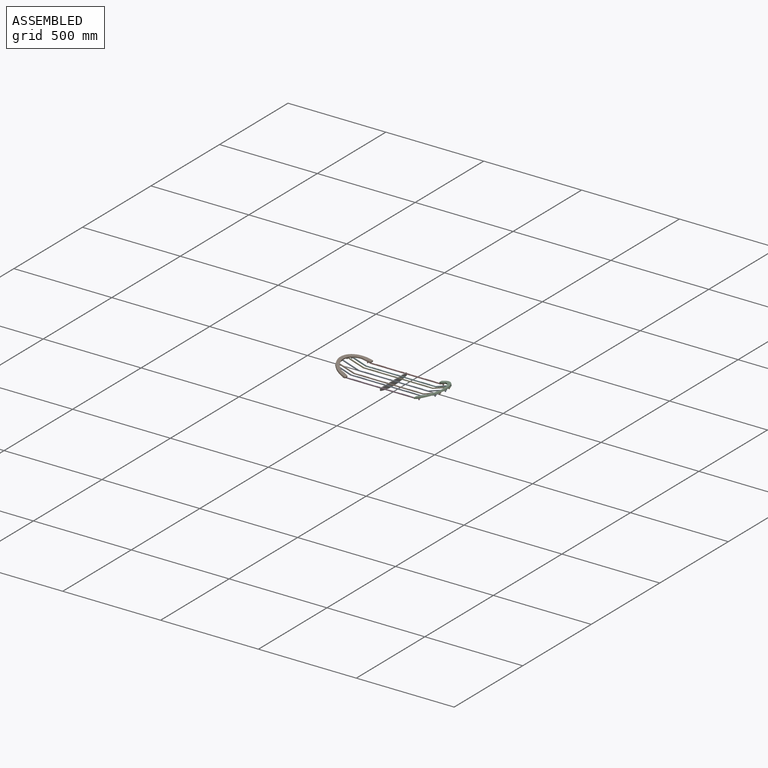
[diagram: assembled view]
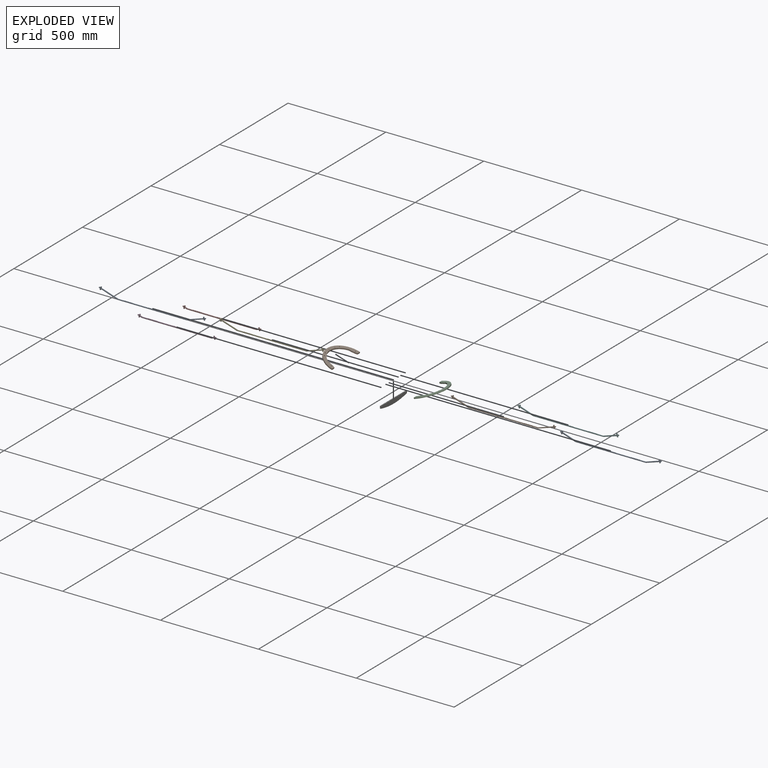
[diagram: exploded view]
GUIDED TOUR — MATED ASSEMBLY (Onshape document d24566d03e6e2440f1f1a7f6, AutoMate assembly d24566d03e6e2440f1f1a7f6_935ead3e7b3816fdfa8bc328_c4fca9ae33e465bc216a4d5f_default)

This assembly has 10 components, labeled P0..P9 below (a component is one placed occurrence of a part; the same part can appear more than once), held together by 9 mates. A mate is a constraint between two components; its type names the relative motion it leaves free:
  FASTENED — locks the two components together rigidly (no relative motion).
Axis/direction vectors are unit vectors and 'through' points are millimeter coordinates, both in the assembly's world frame.

MATES
  1. FASTENED "Fastened 5": P2 <-> P8, direction (-0.952, 0.000, -0.305) through (-121.77, -324.36, -135.49) mm
  2. FASTENED "Fastened 2": P4 <-> P2, direction (0.952, 0.000, 0.305) through (-112.10, -235.62, -132.39) mm
  3. FASTENED "Fastened 3": P2 <-> P9, direction (-0.952, 0.000, -0.305) through (-112.10, -304.44, -132.39) mm
  4. FASTENED "Fastened 7": P2 <-> P3, direction (-0.952, 0.000, -0.305) through (-179.82, -358.46, -154.11) mm
  5. FASTENED "Fastened 1": P0 <-> P2, direction (0.952, 0.000, 0.305) through (-107.26, -270.03, -130.84) mm
  6. FASTENED "Fastened 6": P7 <-> P1, direction (-0.952, 0.000, 0.305) through (-563.58, -181.60, -154.11) mm
  7. FASTENED "Fastened 8": P0 <-> P1, direction (-0.952, 0.000, 0.305) through (-636.14, -270.03, -130.84) mm
  8. FASTENED "Fastened 10": P6 <-> P7, direction (0.000, 0.000, 1.000) through (-371.70, -181.60, -166.36) mm
  9. FASTENED "Fastened 4": P5 <-> P2, direction (0.952, 0.000, 0.305) through (-121.77, -215.69, -135.49) mm

ASSEMBLY ORDER
  1. P2 — the base component [order verified]
  2. P1 [order verified]
  3. P9 [order verified]
  4. P4 [order verified]
  5. P5 [order verified]
  6. P8 [order verified]
  7. P7 [order verified]
  8. P3 [order verified]
  9. P6 [order verified]
  10. P0 [order verified]
Order-tag legend:
  [order verified] — this step's position reverses a verified removal order: the component was checked to insert without passing through the ones already placed.

Of the 10 components, 10 carry the full construction recipe — the FeatureScript program that regenerates the part's solid from scratch; the rest are supplied as boundary geometry only.
Each toured component is shown spotlighted twice — in the assembled view, then in the exploded view, where a leader line traces a displaced component back to its assembled socket (saturated green if recipe-attached, orange if geometry-only; every other component desaturated gray) — followed by its recipe or geometry summary and the mates that hold it.
NOTE — this tour is split across 2 documents so each fits a 32k-token context. This is document 1: the component sections continue in the remaining 1 document, each repeating the header above.
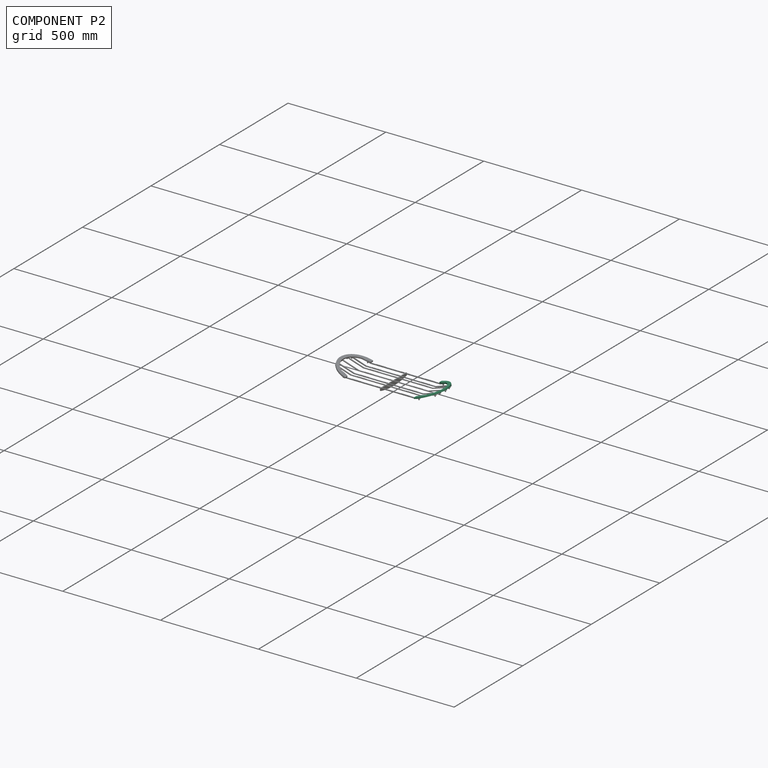
[diagram: component P2 — assembled]
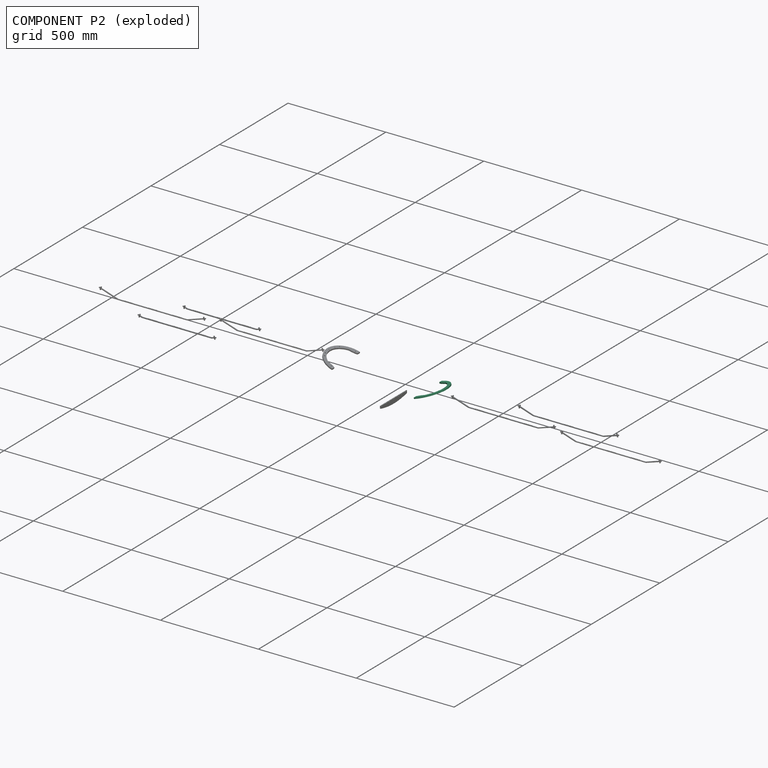
[diagram: component P2 — exploded]
COMPONENT P2 — same part as P1 (CADFS 00899117); its construction recipe is shown at P1.
Held by: FASTENED mate "Fastened 5" to P8; FASTENED mate "Fastened 2" to P4; FASTENED mate "Fastened 3" to P9; FASTENED mate "Fastened 7" to P3; FASTENED mate "Fastened 1" to P0; FASTENED mate "Fastened 4" to P5.
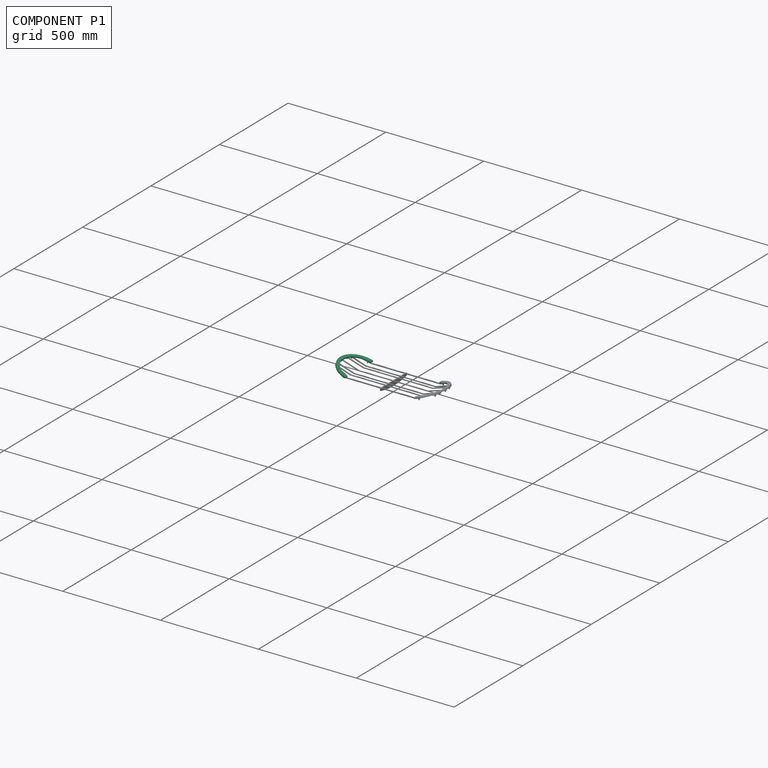
[diagram: component P1 — assembled]
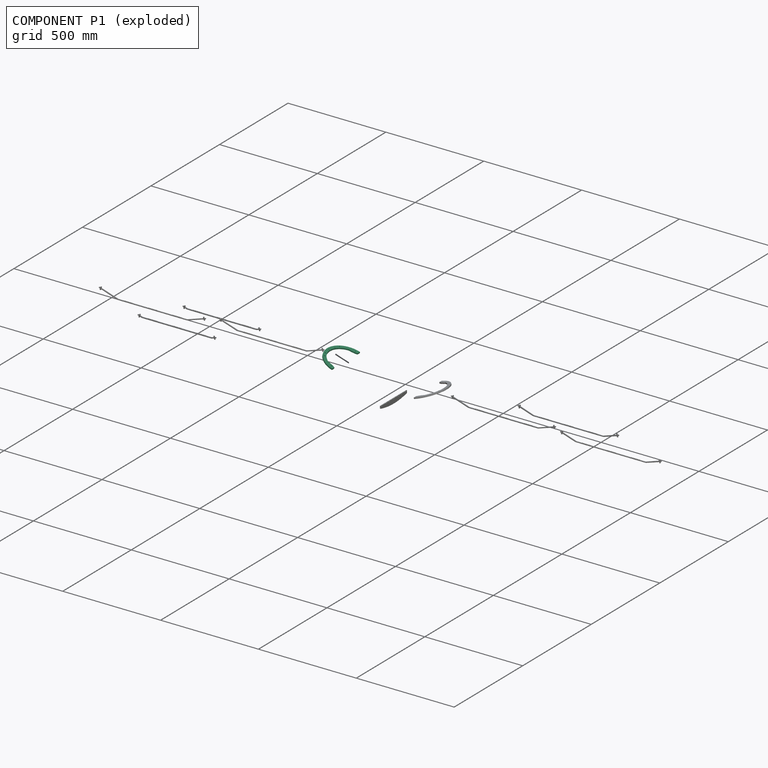
[diagram: component P1 — exploded]
COMPONENT P1 — recipe-attached (CADFS 00899117, mesh-verified: the recipe's output STEP matches this component's geometry to below the mesh-comparison resolution (tessellation chordal tolerance ~0.341 mm)).
Held by: FASTENED mate "Fastened 6" to P7; FASTENED mate "Fastened 8" to P0.
Construction recipe (FeatureScript — the CAD program that rebuilds this solid; sketch coordinates are in the units given by the * unit suffixes, e.g. mm):

FeatureScript 1511;
import(path : "onshape/std/geometry.fs", version : "1511.0");
import(path : "onshape/std/common.fs", version : "1511.0");
const mm = millimeter;
const VERTEX = EntityType.VERTEX;
const EDGE = EntityType.EDGE;
const FACE = EntityType.FACE;
const BODY = EntityType.BODY;
function v(x, y){return vector(x, y);}
function OD(order){return orderDisambiguation(order);}
function OSD(set){return originalSetDisambiguation(set);}
function TD(topology){return topologyDisambiguation(topology);}
function TDD(query){return trueDependencyDisambiguation(query);}
function sQuery(a, b, c) {return sketchEntityQuery(a, b, c);}

annotation { "Feature Type Name" : "Feature", "Feature Type Description" : "" }
export const myFeature = defineFeature(function(context is Context, id is Id, definition is map)
    precondition{}
    {
        {
            var Q0;
            Q0=qCreatedBy(makeId("Front.planeOp"),FACE);
            var sketch = newSketch(context, id + "F0", { "sketchPlane" : qUnion([Q0])});
            skLineSegment(sketch, "E0", {"start": v(84.93, 0) * mm, "end": v(101.6, 0) * mm});
            skLineSegment(sketch, "E1.MirrorCS", {"start": v(-84.93, 0) * mm, "end": v(-101.6, 0) * mm});
            skArc(sketch, "E2", {"start": v(101.6, 0) * mm, "mid": v(101.4, 6.36) * mm, "end": v(100.8, 12.7) * mm});
            skArc(sketch, "E3.trimOffspring", {"start": v(-100.8, 12.7) * mm, "mid": v(-101.4, 6.36) * mm, "end": v(-101.6, 0) * mm});
            skArc(sketch, "E4.trimOffspring", {"start": v(99.8, 19.05) * mm, "mid": v(0, 101.6) * mm, "end": v(-99.8, 19.05) * mm});
            skLineSegment(sketch, "E5.bottom", {"start": v(2.22, 88.9) * mm, "end": v(-2.23, 88.9) * mm});
            skLineSegment(sketch, "E5.top", {"start": v(2.22, 93.35) * mm, "end": v(-2.23, 93.35) * mm});
            skLineSegment(sketch, "E5.left", {"start": v(2.22, 88.9) * mm, "end": v(2.22, 93.35) * mm});
            skLineSegment(sketch, "E5.right", {"start": v(-2.23, 88.9) * mm, "end": v(-2.23, 93.35) * mm});
            skPoint(sketch, "E5.middle", {"position": v(0, 91.12) * mm});
            skLineSegment(sketch, "E6.bottom", {"start": v(-52.11, 73.66) * mm, "end": v(-56.56, 73.66) * mm});
            skLineSegment(sketch, "E6.top", {"start": v(-52.11, 78.11) * mm, "end": v(-56.56, 78.11) * mm});
            skLineSegment(sketch, "E6.left", {"start": v(-52.11, 73.66) * mm, "end": v(-52.11, 78.11) * mm});
            skLineSegment(sketch, "E6.right", {"start": v(-56.56, 73.66) * mm, "end": v(-56.56, 78.11) * mm});
            skPoint(sketch, "E6.middle", {"position": v(-54.34, 75.89) * mm});
            skLineSegment(sketch, "E7.MirrorCS", {"start": v(52.11, 73.66) * mm, "end": v(56.56, 73.66) * mm});
            skLineSegment(sketch, "E8.MirrorCS", {"start": v(52.11, 78.11) * mm, "end": v(56.56, 78.11) * mm});
            skLineSegment(sketch, "E9.MirrorCS", {"start": v(56.56, 73.66) * mm, "end": v(56.56, 78.11) * mm});
            skLineSegment(sketch, "E10.MirrorCS", {"start": v(52.11, 73.66) * mm, "end": v(52.11, 78.11) * mm});
            skLineSegment(sketch, "E11.bottom", {"start": v(-32.18, 83.82) * mm, "end": v(-36.63, 83.82) * mm});
            skLineSegment(sketch, "E11.top", {"start": v(-32.18, 88.27) * mm, "end": v(-36.63, 88.27) * mm});
            skLineSegment(sketch, "E11.left", {"start": v(-32.18, 83.82) * mm, "end": v(-32.18, 88.27) * mm});
            skLineSegment(sketch, "E11.right", {"start": v(-36.63, 83.82) * mm, "end": v(-36.63, 88.27) * mm});
            skPoint(sketch, "E11.middle", {"position": v(-34.4, 86.05) * mm});
            skLineSegment(sketch, "E12.MirrorCS", {"start": v(32.18, 83.82) * mm, "end": v(32.18, 88.27) * mm});
            skLineSegment(sketch, "E13.MirrorCS", {"start": v(32.18, 83.82) * mm, "end": v(36.63, 83.82) * mm});
            skLineSegment(sketch, "E14.MirrorCS", {"start": v(36.63, 83.82) * mm, "end": v(36.63, 88.27) * mm});
            skLineSegment(sketch, "E15.MirrorCS", {"start": v(32.18, 88.27) * mm, "end": v(36.63, 88.27) * mm});
            skLineSegment(sketch, "E16.MirrorCS", {"start": v(-85.73, 12.7) * mm, "end": v(-90.66, 12.7) * mm});
            skLineSegment(sketch, "E17", {"start": v(-85.73, 12.7) * mm, "end": v(-83.97, 12.7) * mm});
            skLineSegment(sketch, "E18", {"start": v(-99.8, 19.05) * mm, "end": v(-100.8, 12.7) * mm});
            skPoint(sketch, "E19.right.end.orphan", {"position": v(-95.87, 19.05) * mm});
            skPoint(sketch, "E19.right.start.orphan", {"position": v(-95.87, 12.7) * mm});
            skLineSegment(sketch, "E20", {"start": v(99.8, 19.05) * mm, "end": v(100.8, 12.7) * mm});
            skArc(sketch, "E21.trimOffspring", {"start": v(75.46, 38.97) * mm, "mid": v(0, 84.93) * mm, "end": v(-75.46, 38.97) * mm});
            skArc(sketch, "E22", {"start": v(-84.93, 0) * mm, "mid": v(-78.33, 19.03) * mm, "end": v(-75.46, 38.97) * mm});
            skArc(sketch, "E23.MirrorCS", {"start": v(84.93, 0) * mm, "mid": v(78.33, 19.03) * mm, "end": v(75.46, 38.97) * mm});
            skLineSegment(sketch, "E24.bottom", {"start": v(-90.66, 12.7) * mm, "end": v(-86.2, 12.7) * mm});
            skLineSegment(sketch, "E24.top", {"start": v(-90.66, 17.15) * mm, "end": v(-86.2, 17.15) * mm});
            skLineSegment(sketch, "E24.left", {"start": v(-90.66, 12.7) * mm, "end": v(-90.66, 17.15) * mm});
            skLineSegment(sketch, "E24.right", {"start": v(-86.2, 12.7) * mm, "end": v(-86.2, 17.15) * mm});
            skLineSegment(sketch, "E25.MirrorCS", {"start": v(90.66, 12.7) * mm, "end": v(86.2, 12.7) * mm});
            skLineSegment(sketch, "E26.MirrorCS", {"start": v(86.2, 12.7) * mm, "end": v(86.2, 17.15) * mm});
            skLineSegment(sketch, "E27.MirrorCS", {"start": v(90.66, 17.15) * mm, "end": v(86.2, 17.15) * mm});
            skLineSegment(sketch, "E28.MirrorCS", {"start": v(90.66, 12.7) * mm, "end": v(90.66, 17.15) * mm});
            skSolve(sketch);
        }
        {
            var Q0;
            Q0=makeQuery(id+"F0.imprint","IMPRINT",FACE,{"disambiguationData":[TD([[makeQuery(id+"F0.imprint","IMPRINT",EDGE,{"derivedFrom":sQuery(id+"F0.wireOp",EDGE,"E0")}),1.0]])]});
            extrude(context, id + "F1", {"entities" : qUnion([Q0]), "depth" : 6.35 * mm, "offsetDistance" : 25 * mm});
        }
    });
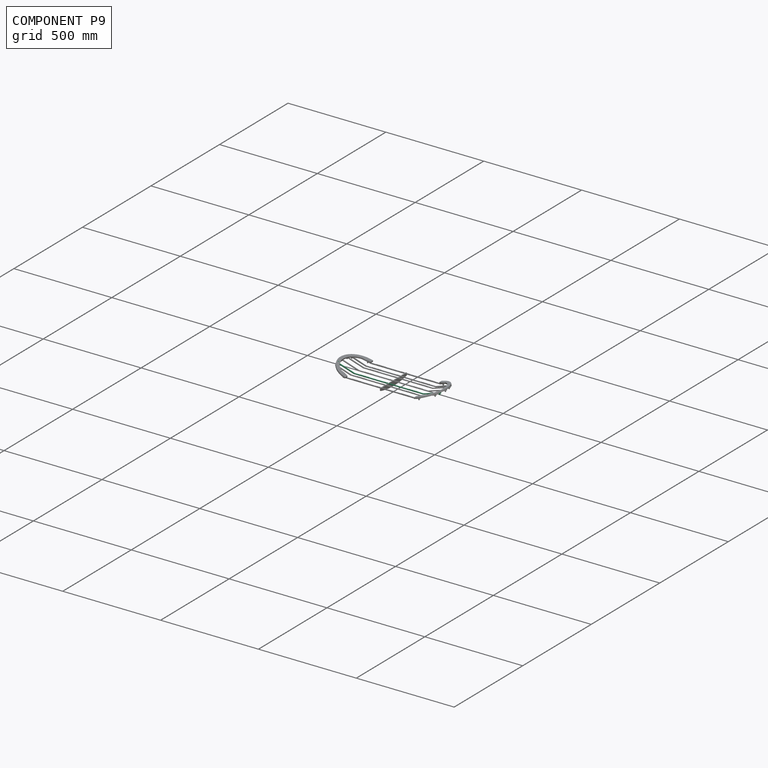
[diagram: component P9 — assembled]
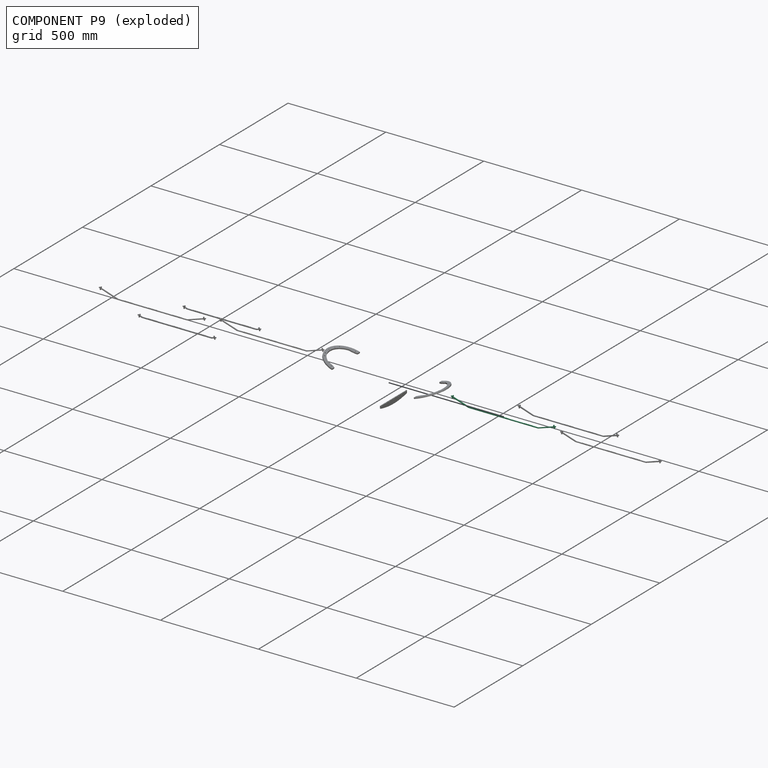
[diagram: component P9 — exploded]
COMPONENT P9 — same part as P4 (CADFS 00899115); its construction recipe is shown at P4.
Held by: FASTENED mate "Fastened 3" to P2.
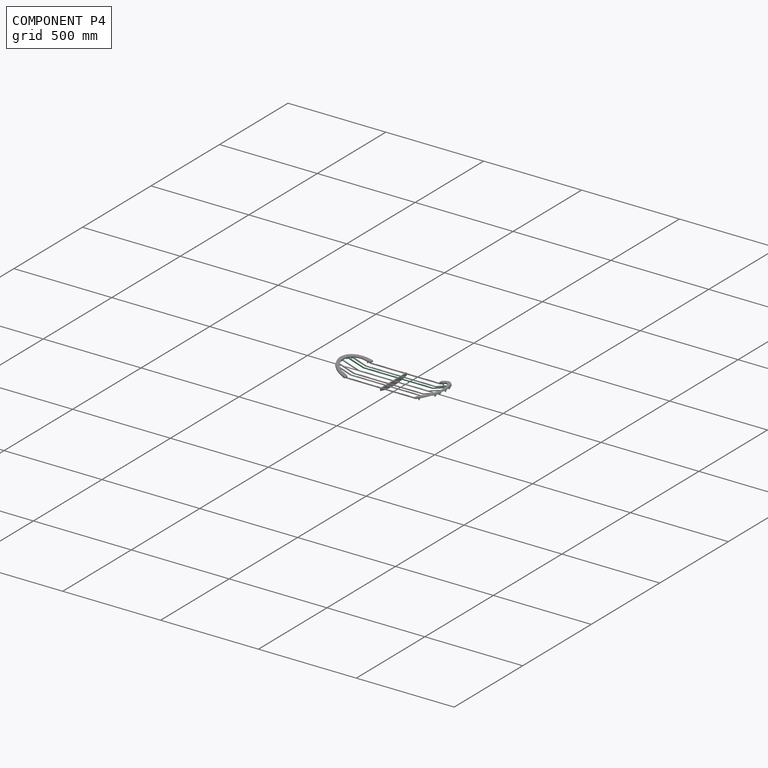
[diagram: component P4 — assembled]
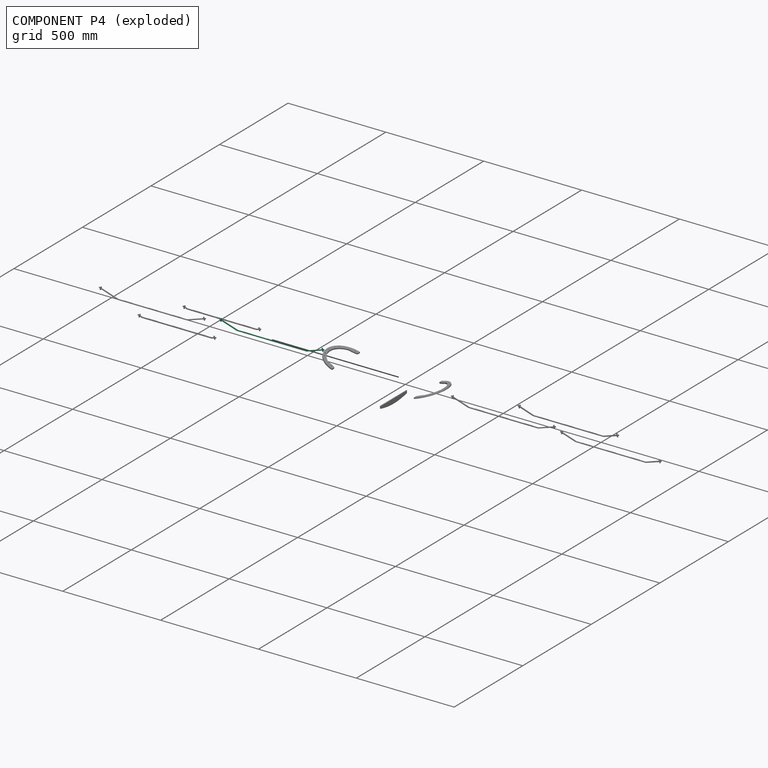
[diagram: component P4 — exploded]
COMPONENT P4 — recipe-attached (CADFS 00899115, mesh-verified: the recipe's output STEP matches this component's geometry to below the mesh-comparison resolution (tessellation chordal tolerance ~0.806 mm)).
Held by: FASTENED mate "Fastened 2" to P2.
Construction recipe (FeatureScript — the CAD program that rebuilds this solid; sketch coordinates are in the units given by the * unit suffixes, e.g. mm):

FeatureScript 1511;
import(path : "onshape/std/geometry.fs", version : "1511.0");
import(path : "onshape/std/common.fs", version : "1511.0");
const mm = millimeter;
const VERTEX = EntityType.VERTEX;
const EDGE = EntityType.EDGE;
const FACE = EntityType.FACE;
const BODY = EntityType.BODY;
function v(x, y){return vector(x, y);}
function OD(order){return orderDisambiguation(order);}
function OSD(set){return originalSetDisambiguation(set);}
function TD(topology){return topologyDisambiguation(topology);}
function TDD(query){return trueDependencyDisambiguation(query);}
function sQuery(a, b, c) {return sketchEntityQuery(a, b, c);}

annotation { "Feature Type Name" : "Feature", "Feature Type Description" : "" }
export const myFeature = defineFeature(function(context is Context, id is Id, definition is map)
    precondition{}
    {
        {
            var Q0;
            Q0=qCreatedBy(makeId("Top.planeOp"),FACE);
            var sketch = newSketch(context, id + "F0", { "sketchPlane" : qUnion([Q0])});
            skLineSegment(sketch, "E0", {"start": v(-253.44, 7.28) * mm, "end": v(102.16, 7.28) * mm});
            skLineSegment(sketch, "E1", {"start": v(-253.44, 7.28) * mm, "end": v(-333.25, 32.88) * mm});
            skLineSegment(sketch, "E2", {"start": v(-333.25, 32.88) * mm, "end": v(-335.04, 27.33) * mm});
            skLineSegment(sketch, "E3", {"start": v(-335.04, 27.33) * mm, "end": v(-339.27, 28.69) * mm});
            skLineSegment(sketch, "E4", {"start": v(-339.27, 28.69) * mm, "end": v(-337.5, 34.24) * mm});
            skLineSegment(sketch, "E5", {"start": v(-337.5, 34.24) * mm, "end": v(-343.54, 36.18) * mm});
            skLineSegment(sketch, "E6", {"start": v(-343.54, 36.18) * mm, "end": v(-342.18, 40.42) * mm});
            skLineSegment(sketch, "E7", {"start": v(-342.18, 40.42) * mm, "end": v(-336.13, 38.48) * mm});
            skLineSegment(sketch, "E8", {"start": v(-336.13, 38.48) * mm, "end": v(-334.35, 44.03) * mm});
            skLineSegment(sketch, "E9", {"start": v(-334.35, 44.03) * mm, "end": v(-330.11, 42.67) * mm});
            skLineSegment(sketch, "E10", {"start": v(-330.11, 42.67) * mm, "end": v(-331.9, 37.12) * mm});
            skLineSegment(sketch, "E11", {"start": v(-331.9, 37.12) * mm, "end": v(-252.08, 11.52) * mm});
            skLineSegment(sketch, "E12", {"start": v(-250.27, 10.94) * mm, "end": v(-222.78, 10.94) * mm});
            skLineSegment(sketch, "E13", {"start": v(-74.41, 12.08) * mm, "end": v(-73.54, 10.94) * mm});
            skLineSegment(sketch, "E14.MirrorCS", {"start": v(-74.41, 12.08) * mm, "end": v(-75.28, 10.94) * mm});
            skLineSegment(sketch, "E15.trimOffspring", {"start": v(-73.54, 10.94) * mm, "end": v(-72.78, 10.94) * mm});
            skPoint(sketch, "E16.start.orphan", {"position": v(-74.41, 4.9) * mm});
            skLineSegment(sketch, "E17.direction1", {"start": v(-73.54, 10.94) * mm, "end": v(-72.78, 10.94) * mm, "construction": true});
            skLineSegment(sketch, "E18.1.0.0", {"start": v(-71.91, 12.08) * mm, "end": v(-71.04, 10.94) * mm});
            skLineSegment(sketch, "E18.1.0.1", {"start": v(-71.91, 12.08) * mm, "end": v(-72.78, 10.94) * mm});
            skLineSegment(sketch, "E18.2.0.0", {"start": v(-69.41, 12.08) * mm, "end": v(-68.54, 10.94) * mm});
            skLineSegment(sketch, "E18.2.0.1", {"start": v(-69.41, 12.08) * mm, "end": v(-70.28, 10.94) * mm});
            skLineSegment(sketch, "E18.3.0.0", {"start": v(-66.91, 12.08) * mm, "end": v(-66.04, 10.94) * mm});
            skLineSegment(sketch, "E18.3.0.1", {"start": v(-66.91, 12.08) * mm, "end": v(-67.78, 10.94) * mm});
            skLineSegment(sketch, "E18.4.0.0", {"start": v(-64.41, 12.08) * mm, "end": v(-63.54, 10.94) * mm});
            skLineSegment(sketch, "E18.4.0.1", {"start": v(-64.41, 12.08) * mm, "end": v(-65.28, 10.94) * mm});
            skLineSegment(sketch, "E18.5.0.0", {"start": v(-61.91, 12.08) * mm, "end": v(-61.04, 10.94) * mm});
            skLineSegment(sketch, "E18.5.0.1", {"start": v(-61.91, 12.08) * mm, "end": v(-62.78, 10.94) * mm});
            skLineSegment(sketch, "E18.6.0.0", {"start": v(-59.41, 12.08) * mm, "end": v(-58.54, 10.94) * mm});
            skLineSegment(sketch, "E18.6.0.1", {"start": v(-59.41, 12.08) * mm, "end": v(-60.28, 10.94) * mm});
            skLineSegment(sketch, "E18.7.0.0", {"start": v(-56.91, 12.08) * mm, "end": v(-56.04, 10.94) * mm});
            skLineSegment(sketch, "E18.7.0.1", {"start": v(-56.91, 12.08) * mm, "end": v(-57.78, 10.94) * mm});
            skLineSegment(sketch, "E18.8.0.0", {"start": v(-54.41, 12.08) * mm, "end": v(-53.54, 10.94) * mm});
            skLineSegment(sketch, "E18.8.0.1", {"start": v(-54.41, 12.08) * mm, "end": v(-55.28, 10.94) * mm});
            skLineSegment(sketch, "E18.9.0.0", {"start": v(-51.91, 12.08) * mm, "end": v(-51.04, 10.94) * mm});
            skLineSegment(sketch, "E18.9.0.1", {"start": v(-51.91, 12.08) * mm, "end": v(-52.78, 10.94) * mm});
            skLineSegment(sketch, "E19.1.0.0", {"start": v(-76.91, 12.08) * mm, "end": v(-77.78, 10.94) * mm});
            skLineSegment(sketch, "E19.1.0.1", {"start": v(-76.91, 12.08) * mm, "end": v(-76.04, 10.94) * mm});
            skLineSegment(sketch, "E19.2.0.0", {"start": v(-79.41, 12.08) * mm, "end": v(-80.28, 10.94) * mm});
            skLineSegment(sketch, "E19.2.0.1", {"start": v(-79.41, 12.08) * mm, "end": v(-78.54, 10.94) * mm});
            skLineSegment(sketch, "E19.3.0.0", {"start": v(-81.91, 12.08) * mm, "end": v(-82.78, 10.94) * mm});
            skLineSegment(sketch, "E19.3.0.1", {"start": v(-81.91, 12.08) * mm, "end": v(-81.04, 10.94) * mm});
            skLineSegment(sketch, "E19.4.0.0", {"start": v(-84.41, 12.08) * mm, "end": v(-85.28, 10.94) * mm});
            skLineSegment(sketch, "E19.4.0.1", {"start": v(-84.41, 12.08) * mm, "end": v(-83.54, 10.94) * mm});
            skLineSegment(sketch, "E19.5.0.0", {"start": v(-86.91, 12.08) * mm, "end": v(-87.78, 10.94) * mm});
            skLineSegment(sketch, "E19.5.0.1", {"start": v(-86.91, 12.08) * mm, "end": v(-86.04, 10.94) * mm});
            skLineSegment(sketch, "E19.6.0.0", {"start": v(-89.41, 12.08) * mm, "end": v(-90.28, 10.94) * mm});
            skLineSegment(sketch, "E19.6.0.1", {"start": v(-89.41, 12.08) * mm, "end": v(-88.54, 10.94) * mm});
            skLineSegment(sketch, "E19.7.0.0", {"start": v(-91.91, 12.08) * mm, "end": v(-92.78, 10.94) * mm});
            skLineSegment(sketch, "E19.7.0.1", {"start": v(-91.91, 12.08) * mm, "end": v(-91.04, 10.94) * mm});
            skLineSegment(sketch, "E19.8.0.0", {"start": v(-94.41, 12.08) * mm, "end": v(-95.28, 10.94) * mm});
            skLineSegment(sketch, "E19.8.0.1", {"start": v(-94.41, 12.08) * mm, "end": v(-93.54, 10.94) * mm});
            skLineSegment(sketch, "E19.9.0.0", {"start": v(-96.91, 12.08) * mm, "end": v(-97.78, 10.94) * mm});
            skLineSegment(sketch, "E19.9.0.1", {"start": v(-96.91, 12.08) * mm, "end": v(-96.04, 10.94) * mm});
            skLineSegment(sketch, "E19.direction1", {"start": v(-75.28, 10.94) * mm, "end": v(-76.04, 10.94) * mm, "construction": true});
            skLineSegment(sketch, "E20.trimOffspring", {"start": v(-96.04, 10.94) * mm, "end": v(-95.28, 10.94) * mm});
            skLineSegment(sketch, "E21.trimOffspring", {"start": v(-93.54, 10.94) * mm, "end": v(-92.78, 10.94) * mm});
            skLineSegment(sketch, "E22.trimOffspring", {"start": v(-91.04, 10.94) * mm, "end": v(-90.28, 10.94) * mm});
            skLineSegment(sketch, "E23.trimOffspring", {"start": v(-86.04, 10.94) * mm, "end": v(-85.28, 10.94) * mm});
            skLineSegment(sketch, "E24.trimOffspring", {"start": v(-88.54, 10.94) * mm, "end": v(-87.78, 10.94) * mm});
            skLineSegment(sketch, "E25.trimOffspring", {"start": v(-83.54, 10.94) * mm, "end": v(-82.78, 10.94) * mm});
            skLineSegment(sketch, "E26.trimOffspring", {"start": v(-81.04, 10.94) * mm, "end": v(-80.28, 10.94) * mm});
            skLineSegment(sketch, "E27.trimOffspring", {"start": v(-78.54, 10.94) * mm, "end": v(-77.78, 10.94) * mm});
            skLineSegment(sketch, "E28.trimOffspring", {"start": v(-76.04, 10.94) * mm, "end": v(-75.28, 10.94) * mm});
            skLineSegment(sketch, "E29.trimOffspring", {"start": v(-71.04, 10.94) * mm, "end": v(-70.28, 10.94) * mm, "construction": true});
            skLineSegment(sketch, "E30.trimOffspring", {"start": v(-71.04, 10.94) * mm, "end": v(-70.28, 10.94) * mm});
            skLineSegment(sketch, "E31.trimOffspring", {"start": v(-68.54, 10.94) * mm, "end": v(-67.78, 10.94) * mm, "construction": true});
            skLineSegment(sketch, "E32.trimOffspring", {"start": v(-68.54, 10.94) * mm, "end": v(-67.78, 10.94) * mm});
            skLineSegment(sketch, "E33.trimOffspring", {"start": v(-66.04, 10.94) * mm, "end": v(-65.28, 10.94) * mm, "construction": true});
            skLineSegment(sketch, "E34.trimOffspring", {"start": v(-63.54, 10.94) * mm, "end": v(-62.78, 10.94) * mm, "construction": true});
            skLineSegment(sketch, "E35.trimOffspring", {"start": v(-63.54, 10.94) * mm, "end": v(-62.78, 10.94) * mm});
            skLineSegment(sketch, "E36", {"start": v(-66.04, 10.94) * mm, "end": v(-65.28, 10.94) * mm});
            skLineSegment(sketch, "E37.trimOffspring", {"start": v(-61.04, 10.94) * mm, "end": v(-60.28, 10.94) * mm, "construction": true});
            skLineSegment(sketch, "E38.trimOffspring", {"start": v(-61.04, 10.94) * mm, "end": v(-60.28, 10.94) * mm});
            skLineSegment(sketch, "E39.trimOffspring", {"start": v(-58.54, 10.94) * mm, "end": v(-57.78, 10.94) * mm, "construction": true});
            skLineSegment(sketch, "E40.trimOffspring", {"start": v(-58.54, 10.94) * mm, "end": v(-57.78, 10.94) * mm});
            skLineSegment(sketch, "E41.trimOffspring", {"start": v(-56.04, 10.94) * mm, "end": v(-55.28, 10.94) * mm, "construction": true});
            skLineSegment(sketch, "E42.trimOffspring", {"start": v(-56.04, 10.94) * mm, "end": v(-55.28, 10.94) * mm});
            skLineSegment(sketch, "E43.trimOffspring", {"start": v(-53.54, 10.94) * mm, "end": v(-52.78, 10.94) * mm, "construction": true});
            skLineSegment(sketch, "E44.trimOffspring", {"start": v(-53.54, 10.94) * mm, "end": v(-52.78, 10.94) * mm});
            skLineSegment(sketch, "E45.trimOffspring", {"start": v(-51.04, 10.94) * mm, "end": v(-48.54, 10.94) * mm, "construction": true});
            skLineSegment(sketch, "E46.trimOffspring", {"start": v(-51.04, 10.94) * mm, "end": v(27.22, 10.94) * mm});
            skLineSegment(sketch, "E47.1.0.0", {"start": v(73.09, 12.08) * mm, "end": v(73.96, 10.94) * mm});
            skLineSegment(sketch, "E47.1.0.1", {"start": v(73.09, 12.08) * mm, "end": v(72.22, 10.94) * mm});
            skLineSegment(sketch, "E47.1.0.2", {"start": v(70.59, 12.08) * mm, "end": v(71.46, 10.94) * mm});
            skLineSegment(sketch, "E47.1.0.3", {"start": v(70.59, 12.08) * mm, "end": v(69.72, 10.94) * mm});
            skLineSegment(sketch, "E47.1.0.4", {"start": v(68.09, 12.08) * mm, "end": v(68.96, 10.94) * mm});
            skLineSegment(sketch, "E47.1.0.5", {"start": v(68.09, 12.08) * mm, "end": v(67.22, 10.94) * mm});
            skLineSegment(sketch, "E47.1.0.6", {"start": v(65.59, 12.08) * mm, "end": v(66.46, 10.94) * mm});
            skLineSegment(sketch, "E47.1.0.7", {"start": v(65.59, 12.08) * mm, "end": v(64.72, 10.94) * mm});
            skLineSegment(sketch, "E47.1.0.8", {"start": v(63.09, 12.08) * mm, "end": v(63.96, 10.94) * mm});
            skLineSegment(sketch, "E47.1.0.9", {"start": v(63.09, 12.08) * mm, "end": v(62.22, 10.94) * mm});
            skLineSegment(sketch, "E47.1.0.10", {"start": v(60.59, 12.08) * mm, "end": v(61.46, 10.94) * mm});
            skLineSegment(sketch, "E47.1.0.11", {"start": v(60.59, 12.08) * mm, "end": v(59.72, 10.94) * mm});
            skLineSegment(sketch, "E47.1.0.12", {"start": v(58.09, 12.08) * mm, "end": v(58.96, 10.94) * mm});
            skLineSegment(sketch, "E47.1.0.13", {"start": v(58.09, 12.08) * mm, "end": v(57.22, 10.94) * mm});
            skLineSegment(sketch, "E47.1.0.14", {"start": v(55.59, 12.08) * mm, "end": v(56.46, 10.94) * mm});
            skLineSegment(sketch, "E47.1.0.15", {"start": v(55.59, 12.08) * mm, "end": v(54.72, 10.94) * mm});
            skLineSegment(sketch, "E47.1.0.16", {"start": v(53.09, 12.08) * mm, "end": v(53.96, 10.94) * mm});
            skLineSegment(sketch, "E47.1.0.17", {"start": v(53.09, 12.08) * mm, "end": v(52.22, 10.94) * mm});
            skLineSegment(sketch, "E47.1.0.18", {"start": v(50.59, 12.08) * mm, "end": v(51.46, 10.94) * mm});
            skLineSegment(sketch, "E47.1.0.19", {"start": v(50.59, 12.08) * mm, "end": v(49.72, 10.94) * mm});
            skLineSegment(sketch, "E47.1.0.20", {"start": v(48.09, 12.08) * mm, "end": v(48.96, 10.94) * mm});
            skLineSegment(sketch, "E47.1.0.21", {"start": v(48.09, 12.08) * mm, "end": v(47.22, 10.94) * mm});
            skLineSegment(sketch, "E47.1.0.22", {"start": v(45.59, 12.08) * mm, "end": v(46.46, 10.94) * mm});
            skLineSegment(sketch, "E47.1.0.23", {"start": v(45.59, 12.08) * mm, "end": v(44.72, 10.94) * mm});
            skLineSegment(sketch, "E47.1.0.24", {"start": v(43.09, 12.08) * mm, "end": v(43.96, 10.94) * mm});
            skLineSegment(sketch, "E47.1.0.25", {"start": v(43.09, 12.08) * mm, "end": v(42.22, 10.94) * mm});
            skLineSegment(sketch, "E47.1.0.26", {"start": v(40.59, 12.08) * mm, "end": v(41.46, 10.94) * mm});
            skLineSegment(sketch, "E47.1.0.27", {"start": v(40.59, 12.08) * mm, "end": v(39.72, 10.94) * mm});
            skLineSegment(sketch, "E47.1.0.28", {"start": v(38.09, 12.08) * mm, "end": v(38.96, 10.94) * mm});
            skLineSegment(sketch, "E47.1.0.29", {"start": v(38.09, 12.08) * mm, "end": v(37.22, 10.94) * mm});
            skLineSegment(sketch, "E47.1.0.30", {"start": v(35.59, 12.08) * mm, "end": v(36.46, 10.94) * mm});
            skLineSegment(sketch, "E47.1.0.31", {"start": v(35.59, 12.08) * mm, "end": v(34.72, 10.94) * mm});
            skLineSegment(sketch, "E47.1.0.32", {"start": v(33.09, 12.08) * mm, "end": v(33.96, 10.94) * mm});
            skLineSegment(sketch, "E47.1.0.33", {"start": v(33.09, 12.08) * mm, "end": v(32.22, 10.94) * mm});
            skLineSegment(sketch, "E47.1.0.34", {"start": v(30.59, 12.08) * mm, "end": v(31.46, 10.94) * mm});
            skLineSegment(sketch, "E47.1.0.35", {"start": v(30.59, 12.08) * mm, "end": v(29.72, 10.94) * mm});
            skLineSegment(sketch, "E47.1.0.36", {"start": v(28.09, 12.08) * mm, "end": v(28.96, 10.94) * mm});
            skLineSegment(sketch, "E47.1.0.37", {"start": v(28.09, 12.08) * mm, "end": v(27.22, 10.94) * mm});
            skLineSegment(sketch, "E48.1.0.0", {"start": v(-176.91, 12.08) * mm, "end": v(-176.04, 10.94) * mm});
            skLineSegment(sketch, "E48.1.0.1", {"start": v(-176.91, 12.08) * mm, "end": v(-177.78, 10.94) * mm});
            skLineSegment(sketch, "E48.1.0.2", {"start": v(-179.41, 12.08) * mm, "end": v(-178.54, 10.94) * mm});
            skLineSegment(sketch, "E48.1.0.3", {"start": v(-179.41, 12.08) * mm, "end": v(-180.28, 10.94) * mm});
            skLineSegment(sketch, "E48.1.0.4", {"start": v(-181.91, 12.08) * mm, "end": v(-181.04, 10.94) * mm});
            skLineSegment(sketch, "E48.1.0.5", {"start": v(-181.91, 12.08) * mm, "end": v(-182.78, 10.94) * mm});
            skLineSegment(sketch, "E48.1.0.6", {"start": v(-184.41, 12.08) * mm, "end": v(-183.54, 10.94) * mm});
            skLineSegment(sketch, "E48.1.0.7", {"start": v(-184.41, 12.08) * mm, "end": v(-185.28, 10.94) * mm});
            skLineSegment(sketch, "E48.1.0.8", {"start": v(-186.91, 12.08) * mm, "end": v(-186.04, 10.94) * mm});
            skLineSegment(sketch, "E48.1.0.9", {"start": v(-186.91, 12.08) * mm, "end": v(-187.78, 10.94) * mm});
            skLineSegment(sketch, "E48.1.0.10", {"start": v(-189.41, 12.08) * mm, "end": v(-188.54, 10.94) * mm});
            skLineSegment(sketch, "E48.1.0.11", {"start": v(-189.41, 12.08) * mm, "end": v(-190.28, 10.94) * mm});
            skLineSegment(sketch, "E48.1.0.12", {"start": v(-191.91, 12.08) * mm, "end": v(-191.04, 10.94) * mm});
            skLineSegment(sketch, "E48.1.0.13", {"start": v(-191.91, 12.08) * mm, "end": v(-192.78, 10.94) * mm});
            skLineSegment(sketch, "E48.1.0.14", {"start": v(-194.41, 12.08) * mm, "end": v(-193.54, 10.94) * mm});
            skLineSegment(sketch, "E48.1.0.15", {"start": v(-194.41, 12.08) * mm, "end": v(-195.28, 10.94) * mm});
            skLineSegment(sketch, "E48.1.0.16", {"start": v(-196.91, 12.08) * mm, "end": v(-196.04, 10.94) * mm});
            skLineSegment(sketch, "E48.1.0.17", {"start": v(-196.91, 12.08) * mm, "end": v(-197.78, 10.94) * mm});
            skLineSegment(sketch, "E48.1.0.18", {"start": v(-199.41, 12.08) * mm, "end": v(-198.54, 10.94) * mm});
            skLineSegment(sketch, "E48.1.0.19", {"start": v(-199.41, 12.08) * mm, "end": v(-200.28, 10.94) * mm});
            skLineSegment(sketch, "E48.1.0.20", {"start": v(-221.91, 12.08) * mm, "end": v(-222.78, 10.94) * mm});
            skLineSegment(sketch, "E48.1.0.21", {"start": v(-221.91, 12.08) * mm, "end": v(-221.04, 10.94) * mm});
            skLineSegment(sketch, "E48.1.0.22", {"start": v(-219.41, 12.08) * mm, "end": v(-220.28, 10.94) * mm});
            skLineSegment(sketch, "E48.1.0.23", {"start": v(-219.41, 12.08) * mm, "end": v(-218.54, 10.94) * mm});
            skLineSegment(sketch, "E48.1.0.24", {"start": v(-216.91, 12.08) * mm, "end": v(-217.78, 10.94) * mm});
            skLineSegment(sketch, "E48.1.0.25", {"start": v(-216.91, 12.08) * mm, "end": v(-216.04, 10.94) * mm});
            skLineSegment(sketch, "E48.1.0.26", {"start": v(-214.41, 12.08) * mm, "end": v(-215.28, 10.94) * mm});
            skLineSegment(sketch, "E48.1.0.27", {"start": v(-214.41, 12.08) * mm, "end": v(-213.54, 10.94) * mm});
            skLineSegment(sketch, "E48.1.0.28", {"start": v(-211.91, 12.08) * mm, "end": v(-212.78, 10.94) * mm});
            skLineSegment(sketch, "E48.1.0.29", {"start": v(-211.91, 12.08) * mm, "end": v(-211.04, 10.94) * mm});
            skLineSegment(sketch, "E48.1.0.30", {"start": v(-209.41, 12.08) * mm, "end": v(-210.28, 10.94) * mm});
            skLineSegment(sketch, "E48.1.0.31", {"start": v(-209.41, 12.08) * mm, "end": v(-208.54, 10.94) * mm});
            skLineSegment(sketch, "E48.1.0.32", {"start": v(-206.91, 12.08) * mm, "end": v(-207.78, 10.94) * mm});
            skLineSegment(sketch, "E48.1.0.33", {"start": v(-206.91, 12.08) * mm, "end": v(-206.04, 10.94) * mm});
            skLineSegment(sketch, "E48.1.0.34", {"start": v(-204.41, 12.08) * mm, "end": v(-205.28, 10.94) * mm});
            skLineSegment(sketch, "E48.1.0.35", {"start": v(-204.41, 12.08) * mm, "end": v(-203.54, 10.94) * mm});
            skLineSegment(sketch, "E48.1.0.36", {"start": v(-201.91, 12.08) * mm, "end": v(-202.78, 10.94) * mm});
            skLineSegment(sketch, "E48.1.0.37", {"start": v(-201.91, 12.08) * mm, "end": v(-201.04, 10.94) * mm});
            skLineSegment(sketch, "E48.direction1", {"start": v(-51.04, 10.94) * mm, "end": v(-176.04, 10.94) * mm, "construction": true});
            skLineSegment(sketch, "E49.trimOffspring", {"start": v(-221.04, 10.94) * mm, "end": v(-220.28, 10.94) * mm});
            skLineSegment(sketch, "E50.trimOffspring", {"start": v(-218.54, 10.94) * mm, "end": v(-217.78, 10.94) * mm});
            skLineSegment(sketch, "E51.trimOffspring", {"start": v(-216.04, 10.94) * mm, "end": v(-215.28, 10.94) * mm});
            skLineSegment(sketch, "E52.trimOffspring", {"start": v(-213.54, 10.94) * mm, "end": v(-212.78, 10.94) * mm});
            skLineSegment(sketch, "E53.trimOffspring", {"start": v(-211.04, 10.94) * mm, "end": v(-210.28, 10.94) * mm});
            skLineSegment(sketch, "E54.trimOffspring", {"start": v(-208.54, 10.94) * mm, "end": v(-207.78, 10.94) * mm});
            skLineSegment(sketch, "E55.trimOffspring", {"start": v(-206.04, 10.94) * mm, "end": v(-205.28, 10.94) * mm});
            skLineSegment(sketch, "E56.trimOffspring", {"start": v(-203.54, 10.94) * mm, "end": v(-202.78, 10.94) * mm});
            skLineSegment(sketch, "E57.trimOffspring", {"start": v(-201.04, 10.94) * mm, "end": v(-200.28, 10.94) * mm});
            skLineSegment(sketch, "E58.trimOffspring", {"start": v(-198.54, 10.94) * mm, "end": v(-197.78, 10.94) * mm});
            skLineSegment(sketch, "E59.trimOffspring", {"start": v(-196.04, 10.94) * mm, "end": v(-195.28, 10.94) * mm});
            skLineSegment(sketch, "E60.trimOffspring", {"start": v(-193.54, 10.94) * mm, "end": v(-192.78, 10.94) * mm});
            skLineSegment(sketch, "E61.trimOffspring", {"start": v(-191.04, 10.94) * mm, "end": v(-190.28, 10.94) * mm});
            skLineSegment(sketch, "E62.trimOffspring", {"start": v(-188.54, 10.94) * mm, "end": v(-187.78, 10.94) * mm});
            skLineSegment(sketch, "E63.trimOffspring", {"start": v(-186.04, 10.94) * mm, "end": v(-185.28, 10.94) * mm});
            skLineSegment(sketch, "E64.trimOffspring", {"start": v(-183.54, 10.94) * mm, "end": v(-182.78, 10.94) * mm});
            skLineSegment(sketch, "E65.trimOffspring", {"start": v(-181.04, 10.94) * mm, "end": v(-180.28, 10.94) * mm});
            skLineSegment(sketch, "E66.trimOffspring", {"start": v(-178.54, 10.94) * mm, "end": v(-177.78, 10.94) * mm});
            skLineSegment(sketch, "E67.trimOffspring", {"start": v(-176.04, 10.94) * mm, "end": v(-97.78, 10.94) * mm});
            skLineSegment(sketch, "E68.trimOffspring", {"start": v(73.96, 10.94) * mm, "end": v(101.45, 10.94) * mm});
            skLineSegment(sketch, "E69.trimOffspring", {"start": v(71.46, 10.94) * mm, "end": v(72.22, 10.94) * mm, "construction": true});
            skLineSegment(sketch, "E70.trimOffspring", {"start": v(71.46, 10.94) * mm, "end": v(72.22, 10.94) * mm});
            skLineSegment(sketch, "E71.trimOffspring", {"start": v(68.96, 10.94) * mm, "end": v(69.72, 10.94) * mm, "construction": true});
            skLineSegment(sketch, "E72.trimOffspring", {"start": v(68.96, 10.94) * mm, "end": v(69.72, 10.94) * mm});
            skLineSegment(sketch, "E73.trimOffspring", {"start": v(66.46, 10.94) * mm, "end": v(67.22, 10.94) * mm, "construction": true});
            skLineSegment(sketch, "E74.trimOffspring", {"start": v(66.46, 10.94) * mm, "end": v(67.22, 10.94) * mm});
            skLineSegment(sketch, "E75.trimOffspring", {"start": v(63.96, 10.94) * mm, "end": v(64.72, 10.94) * mm, "construction": true});
            skLineSegment(sketch, "E76.trimOffspring", {"start": v(63.96, 10.94) * mm, "end": v(64.72, 10.94) * mm});
            skLineSegment(sketch, "E77.trimOffspring", {"start": v(61.46, 10.94) * mm, "end": v(62.22, 10.94) * mm});
            skLineSegment(sketch, "E78.trimOffspring", {"start": v(58.96, 10.94) * mm, "end": v(59.72, 10.94) * mm});
            skLineSegment(sketch, "E79.trimOffspring", {"start": v(56.46, 10.94) * mm, "end": v(57.22, 10.94) * mm});
            skLineSegment(sketch, "E80.trimOffspring", {"start": v(53.96, 10.94) * mm, "end": v(54.72, 10.94) * mm});
            skLineSegment(sketch, "E81.trimOffspring", {"start": v(51.46, 10.94) * mm, "end": v(52.22, 10.94) * mm});
            skLineSegment(sketch, "E82.trimOffspring", {"start": v(48.96, 10.94) * mm, "end": v(49.72, 10.94) * mm});
            skLineSegment(sketch, "E83.trimOffspring", {"start": v(46.46, 10.94) * mm, "end": v(47.22, 10.94) * mm});
            skLineSegment(sketch, "E84.trimOffspring", {"start": v(43.96, 10.94) * mm, "end": v(44.72, 10.94) * mm});
            skLineSegment(sketch, "E85.trimOffspring", {"start": v(28.96, 10.94) * mm, "end": v(29.72, 10.94) * mm});
            skLineSegment(sketch, "E86.trimOffspring", {"start": v(31.46, 10.94) * mm, "end": v(32.22, 10.94) * mm});
            skLineSegment(sketch, "E87.trimOffspring", {"start": v(33.96, 10.94) * mm, "end": v(34.72, 10.94) * mm});
            skLineSegment(sketch, "E88.trimOffspring", {"start": v(36.46, 10.94) * mm, "end": v(37.22, 10.94) * mm});
            skLineSegment(sketch, "E89.trimOffspring", {"start": v(38.96, 10.94) * mm, "end": v(39.72, 10.94) * mm});
            skLineSegment(sketch, "E90.trimOffspring", {"start": v(41.46, 10.94) * mm, "end": v(42.22, 10.94) * mm});
            skLineSegment(sketch, "E91", {"start": v(-252.08, 11.52) * mm, "end": v(-250.27, 10.94) * mm});
            skLineSegment(sketch, "E92.MirrorCS", {"start": v(192.26, 36.18) * mm, "end": v(190.9, 40.42) * mm});
            skLineSegment(sketch, "E93.MirrorCS", {"start": v(183.76, 27.33) * mm, "end": v(188, 28.69) * mm});
            skLineSegment(sketch, "E94.MirrorCS", {"start": v(183.07, 44.03) * mm, "end": v(178.84, 42.67) * mm});
            skLineSegment(sketch, "E95.MirrorCS", {"start": v(186.21, 34.24) * mm, "end": v(192.26, 36.18) * mm});
            skLineSegment(sketch, "E96.MirrorCS", {"start": v(184.85, 38.48) * mm, "end": v(183.07, 44.03) * mm});
            skLineSegment(sketch, "E97.MirrorCS", {"start": v(190.9, 40.42) * mm, "end": v(184.85, 38.48) * mm});
            skLineSegment(sketch, "E98.MirrorCS", {"start": v(181.98, 32.88) * mm, "end": v(183.76, 27.33) * mm});
            skLineSegment(sketch, "E99.MirrorCS", {"start": v(188, 28.69) * mm, "end": v(186.21, 34.24) * mm});
            skLineSegment(sketch, "E100.MirrorCS", {"start": v(178.84, 42.67) * mm, "end": v(180.62, 37.12) * mm});
            skLineSegment(sketch, "E101.MirrorCS", {"start": v(102.16, 7.28) * mm, "end": v(181.98, 32.88) * mm});
            skLineSegment(sketch, "E102.MirrorCS", {"start": v(180.62, 37.12) * mm, "end": v(101.45, 10.94) * mm});
            skSolve(sketch);
        }
        {
            var Q0;
            Q0=makeQuery(id+"F0.imprint","IMPRINT",FACE,{"disambiguationData":[TD([[makeQuery(id+"F0.imprint","IMPRINT",EDGE,{"derivedFrom":sQuery(id+"F0.wireOp",EDGE,"E0")}),1.0]])]});
            extrude(context, id + "F1", {"entities" : qUnion([Q0]), "depth" : 4.45 * mm, "offsetDistance" : 25 * mm});
        }
    });
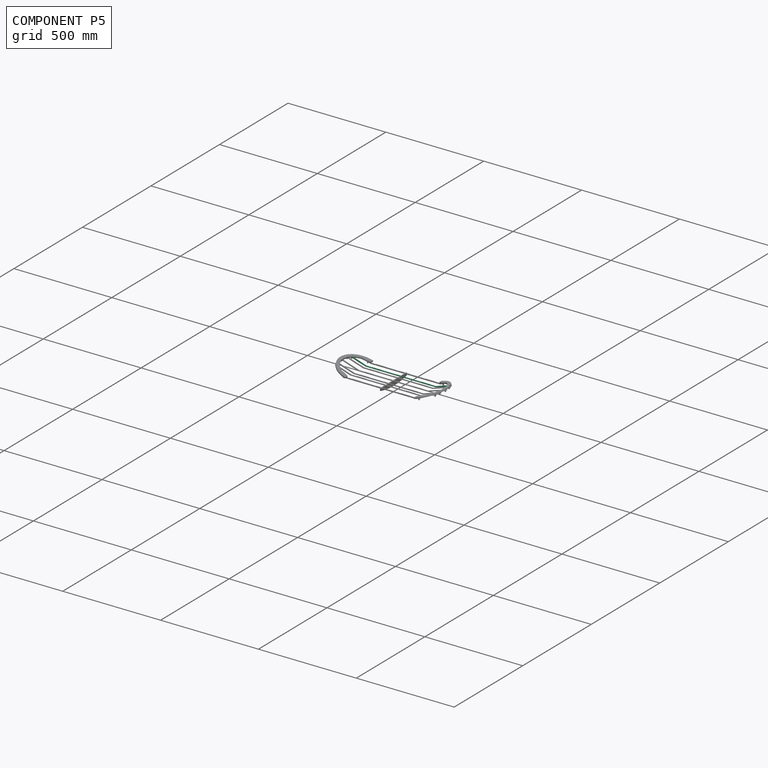
[diagram: component P5 — assembled]
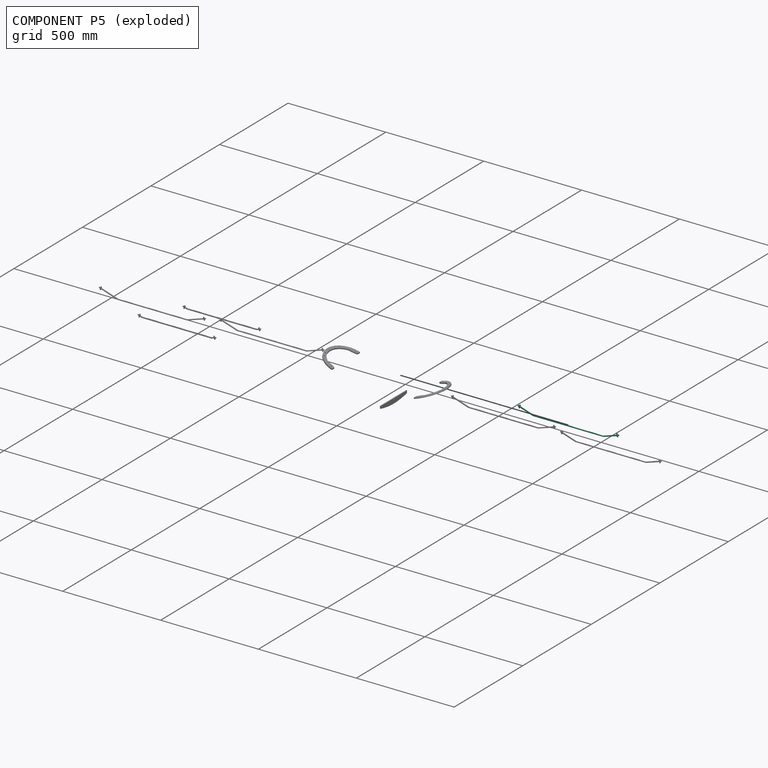
[diagram: component P5 — exploded]
COMPONENT P5 — recipe-attached (CADFS 00899114, mesh-verified: the recipe's output STEP matches this component's geometry to below the mesh-comparison resolution (tessellation chordal tolerance ~0.777 mm)).
Held by: FASTENED mate "Fastened 4" to P2.
Construction recipe (FeatureScript — the CAD program that rebuilds this solid; sketch coordinates are in the units given by the * unit suffixes, e.g. mm):

FeatureScript 1511;
import(path : "onshape/std/geometry.fs", version : "1511.0");
import(path : "onshape/std/common.fs", version : "1511.0");
const mm = millimeter;
const VERTEX = EntityType.VERTEX;
const EDGE = EntityType.EDGE;
const FACE = EntityType.FACE;
const BODY = EntityType.BODY;
function v(x, y){return vector(x, y);}
function OD(order){return orderDisambiguation(order);}
function OSD(set){return originalSetDisambiguation(set);}
function TD(topology){return topologyDisambiguation(topology);}
function TDD(query){return trueDependencyDisambiguation(query);}
function sQuery(a, b, c) {return sketchEntityQuery(a, b, c);}

annotation { "Feature Type Name" : "Feature", "Feature Type Description" : "" }
export const myFeature = defineFeature(function(context is Context, id is Id, definition is map)
    precondition{}
    {
        {
            var Q0;
            Q0=qCreatedBy(makeId("Top.planeOp"),FACE);
            var sketch = newSketch(context, id + "F0", { "sketchPlane" : qUnion([Q0])});
            skLineSegment(sketch, "E0", {"start": v(-260.7, 10.38) * mm, "end": v(94.9, 10.38) * mm});
            skLineSegment(sketch, "E1", {"start": v(-259.95, 14.04) * mm, "end": v(-232.45, 14.04) * mm});
            skLineSegment(sketch, "E2", {"start": v(-84.08, 15.18) * mm, "end": v(-83.22, 14.04) * mm});
            skLineSegment(sketch, "E3.MirrorCS", {"start": v(-84.08, 15.18) * mm, "end": v(-84.95, 14.04) * mm});
            skLineSegment(sketch, "E4.trimOffspring", {"start": v(-83.22, 14.04) * mm, "end": v(-82.45, 14.04) * mm});
            skPoint(sketch, "E5.start.orphan", {"position": v(-84.08, 8) * mm});
            skLineSegment(sketch, "E6.direction1", {"start": v(-83.22, 14.04) * mm, "end": v(-82.45, 14.04) * mm, "construction": true});
            skLineSegment(sketch, "E7.1.0.0", {"start": v(-81.58, 15.18) * mm, "end": v(-80.72, 14.04) * mm});
            skLineSegment(sketch, "E7.1.0.1", {"start": v(-81.58, 15.18) * mm, "end": v(-82.45, 14.04) * mm});
            skLineSegment(sketch, "E7.2.0.0", {"start": v(-79.08, 15.18) * mm, "end": v(-78.22, 14.04) * mm});
            skLineSegment(sketch, "E7.2.0.1", {"start": v(-79.08, 15.18) * mm, "end": v(-79.95, 14.04) * mm});
            skLineSegment(sketch, "E7.3.0.0", {"start": v(-76.58, 15.18) * mm, "end": v(-75.72, 14.04) * mm});
            skLineSegment(sketch, "E7.3.0.1", {"start": v(-76.58, 15.18) * mm, "end": v(-77.45, 14.04) * mm});
            skLineSegment(sketch, "E7.4.0.0", {"start": v(-74.08, 15.18) * mm, "end": v(-73.22, 14.04) * mm});
            skLineSegment(sketch, "E7.4.0.1", {"start": v(-74.08, 15.18) * mm, "end": v(-74.95, 14.04) * mm});
            skLineSegment(sketch, "E7.5.0.0", {"start": v(-71.58, 15.18) * mm, "end": v(-70.72, 14.04) * mm});
            skLineSegment(sketch, "E7.5.0.1", {"start": v(-71.58, 15.18) * mm, "end": v(-72.45, 14.04) * mm});
            skLineSegment(sketch, "E7.6.0.0", {"start": v(-69.08, 15.18) * mm, "end": v(-68.22, 14.04) * mm});
            skLineSegment(sketch, "E7.6.0.1", {"start": v(-69.08, 15.18) * mm, "end": v(-69.95, 14.04) * mm});
            skLineSegment(sketch, "E7.7.0.0", {"start": v(-66.58, 15.18) * mm, "end": v(-65.72, 14.04) * mm});
            skLineSegment(sketch, "E7.7.0.1", {"start": v(-66.58, 15.18) * mm, "end": v(-67.45, 14.04) * mm});
            skLineSegment(sketch, "E7.8.0.0", {"start": v(-64.08, 15.18) * mm, "end": v(-63.22, 14.04) * mm});
            skLineSegment(sketch, "E7.8.0.1", {"start": v(-64.08, 15.18) * mm, "end": v(-64.95, 14.04) * mm});
            skLineSegment(sketch, "E7.9.0.0", {"start": v(-61.58, 15.18) * mm, "end": v(-60.72, 14.04) * mm});
            skLineSegment(sketch, "E7.9.0.1", {"start": v(-61.58, 15.18) * mm, "end": v(-62.45, 14.04) * mm});
            skLineSegment(sketch, "E8.1.0.0", {"start": v(-86.58, 15.18) * mm, "end": v(-87.45, 14.04) * mm});
            skLineSegment(sketch, "E8.1.0.1", {"start": v(-86.58, 15.18) * mm, "end": v(-85.72, 14.04) * mm});
            skLineSegment(sketch, "E8.2.0.0", {"start": v(-89.08, 15.18) * mm, "end": v(-89.95, 14.04) * mm});
            skLineSegment(sketch, "E8.2.0.1", {"start": v(-89.08, 15.18) * mm, "end": v(-88.22, 14.04) * mm});
            skLineSegment(sketch, "E8.3.0.0", {"start": v(-91.58, 15.18) * mm, "end": v(-92.45, 14.04) * mm});
            skLineSegment(sketch, "E8.3.0.1", {"start": v(-91.58, 15.18) * mm, "end": v(-90.72, 14.04) * mm});
            skLineSegment(sketch, "E8.4.0.0", {"start": v(-94.08, 15.18) * mm, "end": v(-94.95, 14.04) * mm});
            skLineSegment(sketch, "E8.4.0.1", {"start": v(-94.08, 15.18) * mm, "end": v(-93.22, 14.04) * mm});
            skLineSegment(sketch, "E8.5.0.0", {"start": v(-96.58, 15.18) * mm, "end": v(-97.45, 14.04) * mm});
            skLineSegment(sketch, "E8.5.0.1", {"start": v(-96.58, 15.18) * mm, "end": v(-95.72, 14.04) * mm});
            skLineSegment(sketch, "E8.6.0.0", {"start": v(-99.08, 15.18) * mm, "end": v(-99.95, 14.04) * mm});
            skLineSegment(sketch, "E8.6.0.1", {"start": v(-99.08, 15.18) * mm, "end": v(-98.22, 14.04) * mm});
            skLineSegment(sketch, "E8.7.0.0", {"start": v(-101.58, 15.18) * mm, "end": v(-102.45, 14.04) * mm});
            skLineSegment(sketch, "E8.7.0.1", {"start": v(-101.58, 15.18) * mm, "end": v(-100.72, 14.04) * mm});
            skLineSegment(sketch, "E8.8.0.0", {"start": v(-104.08, 15.18) * mm, "end": v(-104.95, 14.04) * mm});
            skLineSegment(sketch, "E8.8.0.1", {"start": v(-104.08, 15.18) * mm, "end": v(-103.22, 14.04) * mm});
            skLineSegment(sketch, "E8.9.0.0", {"start": v(-106.58, 15.18) * mm, "end": v(-107.45, 14.04) * mm});
            skLineSegment(sketch, "E8.9.0.1", {"start": v(-106.58, 15.18) * mm, "end": v(-105.72, 14.04) * mm});
            skLineSegment(sketch, "E8.direction1", {"start": v(-84.95, 14.04) * mm, "end": v(-85.72, 14.04) * mm, "construction": true});
            skLineSegment(sketch, "E9.trimOffspring", {"start": v(-105.72, 14.04) * mm, "end": v(-104.95, 14.04) * mm});
            skLineSegment(sketch, "E10.trimOffspring", {"start": v(-103.22, 14.04) * mm, "end": v(-102.45, 14.04) * mm});
            skLineSegment(sketch, "E11.trimOffspring", {"start": v(-100.72, 14.04) * mm, "end": v(-99.95, 14.04) * mm});
            skLineSegment(sketch, "E12.trimOffspring", {"start": v(-95.72, 14.04) * mm, "end": v(-94.95, 14.04) * mm});
            skLineSegment(sketch, "E13.trimOffspring", {"start": v(-98.22, 14.04) * mm, "end": v(-97.45, 14.04) * mm});
            skLineSegment(sketch, "E14.trimOffspring", {"start": v(-93.22, 14.04) * mm, "end": v(-92.45, 14.04) * mm});
            skLineSegment(sketch, "E15.trimOffspring", {"start": v(-90.72, 14.04) * mm, "end": v(-89.95, 14.04) * mm});
            skLineSegment(sketch, "E16.trimOffspring", {"start": v(-88.22, 14.04) * mm, "end": v(-87.45, 14.04) * mm});
            skLineSegment(sketch, "E17.trimOffspring", {"start": v(-85.72, 14.04) * mm, "end": v(-84.95, 14.04) * mm});
            skLineSegment(sketch, "E18.trimOffspring", {"start": v(-80.72, 14.04) * mm, "end": v(-79.95, 14.04) * mm, "construction": true});
            skLineSegment(sketch, "E19.trimOffspring", {"start": v(-80.72, 14.04) * mm, "end": v(-79.95, 14.04) * mm});
            skLineSegment(sketch, "E20.trimOffspring", {"start": v(-78.22, 14.04) * mm, "end": v(-77.45, 14.04) * mm, "construction": true});
            skLineSegment(sketch, "E21.trimOffspring", {"start": v(-78.22, 14.04) * mm, "end": v(-77.45, 14.04) * mm});
            skLineSegment(sketch, "E22.trimOffspring", {"start": v(-75.72, 14.04) * mm, "end": v(-74.95, 14.04) * mm, "construction": true});
            skLineSegment(sketch, "E23.trimOffspring", {"start": v(-73.22, 14.04) * mm, "end": v(-72.45, 14.04) * mm, "construction": true});
            skLineSegment(sketch, "E24.trimOffspring", {"start": v(-73.22, 14.04) * mm, "end": v(-72.45, 14.04) * mm});
            skLineSegment(sketch, "E25", {"start": v(-75.72, 14.04) * mm, "end": v(-74.95, 14.04) * mm});
            skLineSegment(sketch, "E26.trimOffspring", {"start": v(-70.72, 14.04) * mm, "end": v(-69.95, 14.04) * mm, "construction": true});
            skLineSegment(sketch, "E27.trimOffspring", {"start": v(-70.72, 14.04) * mm, "end": v(-69.95, 14.04) * mm});
            skLineSegment(sketch, "E28.trimOffspring", {"start": v(-68.22, 14.04) * mm, "end": v(-67.45, 14.04) * mm, "construction": true});
            skLineSegment(sketch, "E29.trimOffspring", {"start": v(-68.22, 14.04) * mm, "end": v(-67.45, 14.04) * mm});
            skLineSegment(sketch, "E30.trimOffspring", {"start": v(-65.72, 14.04) * mm, "end": v(-64.95, 14.04) * mm, "construction": true});
            skLineSegment(sketch, "E31.trimOffspring", {"start": v(-65.72, 14.04) * mm, "end": v(-64.95, 14.04) * mm});
            skLineSegment(sketch, "E32.trimOffspring", {"start": v(-63.22, 14.04) * mm, "end": v(-62.45, 14.04) * mm, "construction": true});
            skLineSegment(sketch, "E33.trimOffspring", {"start": v(-63.22, 14.04) * mm, "end": v(-62.45, 14.04) * mm});
            skLineSegment(sketch, "E34.trimOffspring", {"start": v(-60.72, 14.04) * mm, "end": v(-58.22, 14.04) * mm, "construction": true});
            skLineSegment(sketch, "E35.trimOffspring", {"start": v(-60.72, 14.04) * mm, "end": v(17.55, 14.04) * mm});
            skLineSegment(sketch, "E36.1.0.0", {"start": v(63.42, 15.18) * mm, "end": v(64.28, 14.04) * mm});
            skLineSegment(sketch, "E36.1.0.1", {"start": v(63.42, 15.18) * mm, "end": v(62.55, 14.04) * mm});
            skLineSegment(sketch, "E36.1.0.2", {"start": v(60.92, 15.18) * mm, "end": v(61.78, 14.04) * mm});
            skLineSegment(sketch, "E36.1.0.3", {"start": v(60.92, 15.18) * mm, "end": v(60.05, 14.04) * mm});
            skLineSegment(sketch, "E36.1.0.4", {"start": v(58.42, 15.18) * mm, "end": v(59.28, 14.04) * mm});
            skLineSegment(sketch, "E36.1.0.5", {"start": v(58.42, 15.18) * mm, "end": v(57.55, 14.04) * mm});
            skLineSegment(sketch, "E36.1.0.6", {"start": v(55.92, 15.18) * mm, "end": v(56.78, 14.04) * mm});
            skLineSegment(sketch, "E36.1.0.7", {"start": v(55.92, 15.18) * mm, "end": v(55.05, 14.04) * mm});
            skLineSegment(sketch, "E36.1.0.8", {"start": v(53.42, 15.18) * mm, "end": v(54.28, 14.04) * mm});
            skLineSegment(sketch, "E36.1.0.9", {"start": v(53.42, 15.18) * mm, "end": v(52.55, 14.04) * mm});
            skLineSegment(sketch, "E36.1.0.10", {"start": v(50.92, 15.18) * mm, "end": v(51.78, 14.04) * mm});
            skLineSegment(sketch, "E36.1.0.11", {"start": v(50.92, 15.18) * mm, "end": v(50.05, 14.04) * mm});
            skLineSegment(sketch, "E36.1.0.12", {"start": v(48.42, 15.18) * mm, "end": v(49.28, 14.04) * mm});
            skLineSegment(sketch, "E36.1.0.13", {"start": v(48.42, 15.18) * mm, "end": v(47.55, 14.04) * mm});
            skLineSegment(sketch, "E36.1.0.14", {"start": v(45.92, 15.18) * mm, "end": v(46.78, 14.04) * mm});
            skLineSegment(sketch, "E36.1.0.15", {"start": v(45.92, 15.18) * mm, "end": v(45.05, 14.04) * mm});
            skLineSegment(sketch, "E36.1.0.16", {"start": v(43.42, 15.18) * mm, "end": v(44.28, 14.04) * mm});
            skLineSegment(sketch, "E36.1.0.17", {"start": v(43.42, 15.18) * mm, "end": v(42.55, 14.04) * mm});
            skLineSegment(sketch, "E36.1.0.18", {"start": v(40.92, 15.18) * mm, "end": v(41.78, 14.04) * mm});
            skLineSegment(sketch, "E36.1.0.19", {"start": v(40.92, 15.18) * mm, "end": v(40.05, 14.04) * mm});
            skLineSegment(sketch, "E36.1.0.20", {"start": v(38.42, 15.18) * mm, "end": v(39.28, 14.04) * mm});
            skLineSegment(sketch, "E36.1.0.21", {"start": v(38.42, 15.18) * mm, "end": v(37.55, 14.04) * mm});
            skLineSegment(sketch, "E36.1.0.22", {"start": v(35.92, 15.18) * mm, "end": v(36.78, 14.04) * mm});
            skLineSegment(sketch, "E36.1.0.23", {"start": v(35.92, 15.18) * mm, "end": v(35.05, 14.04) * mm});
            skLineSegment(sketch, "E36.1.0.24", {"start": v(33.42, 15.18) * mm, "end": v(34.28, 14.04) * mm});
            skLineSegment(sketch, "E36.1.0.25", {"start": v(33.42, 15.18) * mm, "end": v(32.55, 14.04) * mm});
            skLineSegment(sketch, "E36.1.0.26", {"start": v(30.92, 15.18) * mm, "end": v(31.78, 14.04) * mm});
            skLineSegment(sketch, "E36.1.0.27", {"start": v(30.92, 15.18) * mm, "end": v(30.05, 14.04) * mm});
            skLineSegment(sketch, "E36.1.0.28", {"start": v(28.42, 15.18) * mm, "end": v(29.28, 14.04) * mm});
            skLineSegment(sketch, "E36.1.0.29", {"start": v(28.42, 15.18) * mm, "end": v(27.55, 14.04) * mm});
            skLineSegment(sketch, "E36.1.0.30", {"start": v(25.92, 15.18) * mm, "end": v(26.78, 14.04) * mm});
            skLineSegment(sketch, "E36.1.0.31", {"start": v(25.92, 15.18) * mm, "end": v(25.05, 14.04) * mm});
            skLineSegment(sketch, "E36.1.0.32", {"start": v(23.42, 15.18) * mm, "end": v(24.28, 14.04) * mm});
            skLineSegment(sketch, "E36.1.0.33", {"start": v(23.42, 15.18) * mm, "end": v(22.55, 14.04) * mm});
            skLineSegment(sketch, "E36.1.0.34", {"start": v(20.92, 15.18) * mm, "end": v(21.78, 14.04) * mm});
            skLineSegment(sketch, "E36.1.0.35", {"start": v(20.92, 15.18) * mm, "end": v(20.05, 14.04) * mm});
            skLineSegment(sketch, "E36.1.0.36", {"start": v(18.42, 15.18) * mm, "end": v(19.28, 14.04) * mm});
            skLineSegment(sketch, "E36.1.0.37", {"start": v(18.42, 15.18) * mm, "end": v(17.55, 14.04) * mm});
            skLineSegment(sketch, "E37.1.0.0", {"start": v(-186.58, 15.18) * mm, "end": v(-185.72, 14.04) * mm});
            skLineSegment(sketch, "E37.1.0.1", {"start": v(-186.58, 15.18) * mm, "end": v(-187.45, 14.04) * mm});
            skLineSegment(sketch, "E37.1.0.2", {"start": v(-189.08, 15.18) * mm, "end": v(-188.22, 14.04) * mm});
            skLineSegment(sketch, "E37.1.0.3", {"start": v(-189.08, 15.18) * mm, "end": v(-189.95, 14.04) * mm});
            skLineSegment(sketch, "E37.1.0.4", {"start": v(-191.58, 15.18) * mm, "end": v(-190.72, 14.04) * mm});
            skLineSegment(sketch, "E37.1.0.5", {"start": v(-191.58, 15.18) * mm, "end": v(-192.45, 14.04) * mm});
            skLineSegment(sketch, "E37.1.0.6", {"start": v(-194.08, 15.18) * mm, "end": v(-193.22, 14.04) * mm});
            skLineSegment(sketch, "E37.1.0.7", {"start": v(-194.08, 15.18) * mm, "end": v(-194.95, 14.04) * mm});
            skLineSegment(sketch, "E37.1.0.8", {"start": v(-196.58, 15.18) * mm, "end": v(-195.72, 14.04) * mm});
            skLineSegment(sketch, "E37.1.0.9", {"start": v(-196.58, 15.18) * mm, "end": v(-197.45, 14.04) * mm});
            skLineSegment(sketch, "E37.1.0.10", {"start": v(-199.08, 15.18) * mm, "end": v(-198.22, 14.04) * mm});
            skLineSegment(sketch, "E37.1.0.11", {"start": v(-199.08, 15.18) * mm, "end": v(-199.95, 14.04) * mm});
            skLineSegment(sketch, "E37.1.0.12", {"start": v(-201.58, 15.18) * mm, "end": v(-200.72, 14.04) * mm});
            skLineSegment(sketch, "E37.1.0.13", {"start": v(-201.58, 15.18) * mm, "end": v(-202.45, 14.04) * mm});
            skLineSegment(sketch, "E37.1.0.14", {"start": v(-204.08, 15.18) * mm, "end": v(-203.22, 14.04) * mm});
            skLineSegment(sketch, "E37.1.0.15", {"start": v(-204.08, 15.18) * mm, "end": v(-204.95, 14.04) * mm});
            skLineSegment(sketch, "E37.1.0.16", {"start": v(-206.58, 15.18) * mm, "end": v(-205.72, 14.04) * mm});
            skLineSegment(sketch, "E37.1.0.17", {"start": v(-206.58, 15.18) * mm, "end": v(-207.45, 14.04) * mm});
            skLineSegment(sketch, "E37.1.0.18", {"start": v(-209.08, 15.18) * mm, "end": v(-208.22, 14.04) * mm});
            skLineSegment(sketch, "E37.1.0.19", {"start": v(-209.08, 15.18) * mm, "end": v(-209.95, 14.04) * mm});
            skLineSegment(sketch, "E37.1.0.20", {"start": v(-231.58, 15.18) * mm, "end": v(-232.45, 14.04) * mm});
            skLineSegment(sketch, "E37.1.0.21", {"start": v(-231.58, 15.18) * mm, "end": v(-230.72, 14.04) * mm});
            skLineSegment(sketch, "E37.1.0.22", {"start": v(-229.08, 15.18) * mm, "end": v(-229.95, 14.04) * mm});
            skLineSegment(sketch, "E37.1.0.23", {"start": v(-229.08, 15.18) * mm, "end": v(-228.22, 14.04) * mm});
            skLineSegment(sketch, "E37.1.0.24", {"start": v(-226.58, 15.18) * mm, "end": v(-227.45, 14.04) * mm});
            skLineSegment(sketch, "E37.1.0.25", {"start": v(-226.58, 15.18) * mm, "end": v(-225.72, 14.04) * mm});
            skLineSegment(sketch, "E37.1.0.26", {"start": v(-224.08, 15.18) * mm, "end": v(-224.95, 14.04) * mm});
            skLineSegment(sketch, "E37.1.0.27", {"start": v(-224.08, 15.18) * mm, "end": v(-223.22, 14.04) * mm});
            skLineSegment(sketch, "E37.1.0.28", {"start": v(-221.58, 15.18) * mm, "end": v(-222.45, 14.04) * mm});
            skLineSegment(sketch, "E37.1.0.29", {"start": v(-221.58, 15.18) * mm, "end": v(-220.72, 14.04) * mm});
            skLineSegment(sketch, "E37.1.0.30", {"start": v(-219.08, 15.18) * mm, "end": v(-219.95, 14.04) * mm});
            skLineSegment(sketch, "E37.1.0.31", {"start": v(-219.08, 15.18) * mm, "end": v(-218.22, 14.04) * mm});
            skLineSegment(sketch, "E37.1.0.32", {"start": v(-216.58, 15.18) * mm, "end": v(-217.45, 14.04) * mm});
            skLineSegment(sketch, "E37.1.0.33", {"start": v(-216.58, 15.18) * mm, "end": v(-215.72, 14.04) * mm});
            skLineSegment(sketch, "E37.1.0.34", {"start": v(-214.08, 15.18) * mm, "end": v(-214.95, 14.04) * mm});
            skLineSegment(sketch, "E37.1.0.35", {"start": v(-214.08, 15.18) * mm, "end": v(-213.22, 14.04) * mm});
            skLineSegment(sketch, "E37.1.0.36", {"start": v(-211.58, 15.18) * mm, "end": v(-212.45, 14.04) * mm});
            skLineSegment(sketch, "E37.1.0.37", {"start": v(-211.58, 15.18) * mm, "end": v(-210.72, 14.04) * mm});
            skLineSegment(sketch, "E37.direction1", {"start": v(-60.72, 14.04) * mm, "end": v(-185.72, 14.04) * mm, "construction": true});
            skLineSegment(sketch, "E38.trimOffspring", {"start": v(-230.72, 14.04) * mm, "end": v(-229.95, 14.04) * mm});
            skLineSegment(sketch, "E39.trimOffspring", {"start": v(-228.22, 14.04) * mm, "end": v(-227.45, 14.04) * mm});
            skLineSegment(sketch, "E40.trimOffspring", {"start": v(-225.72, 14.04) * mm, "end": v(-224.95, 14.04) * mm});
            skLineSegment(sketch, "E41.trimOffspring", {"start": v(-223.22, 14.04) * mm, "end": v(-222.45, 14.04) * mm});
            skLineSegment(sketch, "E42.trimOffspring", {"start": v(-220.72, 14.04) * mm, "end": v(-219.95, 14.04) * mm});
            skLineSegment(sketch, "E43.trimOffspring", {"start": v(-218.22, 14.04) * mm, "end": v(-217.45, 14.04) * mm});
            skLineSegment(sketch, "E44.trimOffspring", {"start": v(-215.72, 14.04) * mm, "end": v(-214.95, 14.04) * mm});
            skLineSegment(sketch, "E45.trimOffspring", {"start": v(-213.22, 14.04) * mm, "end": v(-212.45, 14.04) * mm});
            skLineSegment(sketch, "E46.trimOffspring", {"start": v(-210.72, 14.04) * mm, "end": v(-209.95, 14.04) * mm});
            skLineSegment(sketch, "E47.trimOffspring", {"start": v(-208.22, 14.04) * mm, "end": v(-207.45, 14.04) * mm});
            skLineSegment(sketch, "E48.trimOffspring", {"start": v(-205.72, 14.04) * mm, "end": v(-204.95, 14.04) * mm});
            skLineSegment(sketch, "E49.trimOffspring", {"start": v(-203.22, 14.04) * mm, "end": v(-202.45, 14.04) * mm});
            skLineSegment(sketch, "E50.trimOffspring", {"start": v(-200.72, 14.04) * mm, "end": v(-199.95, 14.04) * mm});
            skLineSegment(sketch, "E51.trimOffspring", {"start": v(-198.22, 14.04) * mm, "end": v(-197.45, 14.04) * mm});
            skLineSegment(sketch, "E52.trimOffspring", {"start": v(-195.72, 14.04) * mm, "end": v(-194.95, 14.04) * mm});
            skLineSegment(sketch, "E53.trimOffspring", {"start": v(-193.22, 14.04) * mm, "end": v(-192.45, 14.04) * mm});
            skLineSegment(sketch, "E54.trimOffspring", {"start": v(-190.72, 14.04) * mm, "end": v(-189.95, 14.04) * mm});
            skLineSegment(sketch, "E55.trimOffspring", {"start": v(-188.22, 14.04) * mm, "end": v(-187.45, 14.04) * mm});
            skLineSegment(sketch, "E56.trimOffspring", {"start": v(-185.72, 14.04) * mm, "end": v(-107.45, 14.04) * mm});
            skLineSegment(sketch, "E57.trimOffspring", {"start": v(64.28, 14.04) * mm, "end": v(91.78, 14.04) * mm});
            skLineSegment(sketch, "E58.trimOffspring", {"start": v(61.78, 14.04) * mm, "end": v(62.55, 14.04) * mm, "construction": true});
            skLineSegment(sketch, "E59.trimOffspring", {"start": v(61.78, 14.04) * mm, "end": v(62.55, 14.04) * mm});
            skLineSegment(sketch, "E60.trimOffspring", {"start": v(59.28, 14.04) * mm, "end": v(60.05, 14.04) * mm, "construction": true});
            skLineSegment(sketch, "E61.trimOffspring", {"start": v(59.28, 14.04) * mm, "end": v(60.05, 14.04) * mm});
            skLineSegment(sketch, "E62.trimOffspring", {"start": v(56.78, 14.04) * mm, "end": v(57.55, 14.04) * mm, "construction": true});
            skLineSegment(sketch, "E63.trimOffspring", {"start": v(56.78, 14.04) * mm, "end": v(57.55, 14.04) * mm});
            skLineSegment(sketch, "E64.trimOffspring", {"start": v(54.28, 14.04) * mm, "end": v(55.05, 14.04) * mm, "construction": true});
            skLineSegment(sketch, "E65.trimOffspring", {"start": v(54.28, 14.04) * mm, "end": v(55.05, 14.04) * mm});
            skLineSegment(sketch, "E66.trimOffspring", {"start": v(51.78, 14.04) * mm, "end": v(52.55, 14.04) * mm});
            skLineSegment(sketch, "E67.trimOffspring", {"start": v(49.28, 14.04) * mm, "end": v(50.05, 14.04) * mm});
            skLineSegment(sketch, "E68.trimOffspring", {"start": v(46.78, 14.04) * mm, "end": v(47.55, 14.04) * mm});
            skLineSegment(sketch, "E69.trimOffspring", {"start": v(44.28, 14.04) * mm, "end": v(45.05, 14.04) * mm});
            skLineSegment(sketch, "E70.trimOffspring", {"start": v(41.78, 14.04) * mm, "end": v(42.55, 14.04) * mm});
            skLineSegment(sketch, "E71.trimOffspring", {"start": v(39.28, 14.04) * mm, "end": v(40.05, 14.04) * mm});
            skLineSegment(sketch, "E72.trimOffspring", {"start": v(36.78, 14.04) * mm, "end": v(37.55, 14.04) * mm});
            skLineSegment(sketch, "E73.trimOffspring", {"start": v(34.28, 14.04) * mm, "end": v(35.05, 14.04) * mm});
            skLineSegment(sketch, "E74.trimOffspring", {"start": v(19.28, 14.04) * mm, "end": v(20.05, 14.04) * mm});
            skLineSegment(sketch, "E75.trimOffspring", {"start": v(21.78, 14.04) * mm, "end": v(22.55, 14.04) * mm});
            skLineSegment(sketch, "E76.trimOffspring", {"start": v(24.28, 14.04) * mm, "end": v(25.05, 14.04) * mm});
            skLineSegment(sketch, "E77.trimOffspring", {"start": v(26.78, 14.04) * mm, "end": v(27.55, 14.04) * mm});
            skLineSegment(sketch, "E78.trimOffspring", {"start": v(29.28, 14.04) * mm, "end": v(30.05, 14.04) * mm});
            skLineSegment(sketch, "E79.trimOffspring", {"start": v(31.78, 14.04) * mm, "end": v(32.55, 14.04) * mm});
            skLineSegment(sketch, "E80.MirrorCS", {"start": v(163.72, 44.03) * mm, "end": v(159.49, 42.67) * mm});
            skLineSegment(sketch, "E81.MirrorCS", {"start": v(173.14, 35.48) * mm, "end": v(171.55, 40.42) * mm});
            skLineSegment(sketch, "E82.MirrorCS", {"start": v(164.58, 26.83) * mm, "end": v(168.82, 28.19) * mm});
            skLineSegment(sketch, "E83.MirrorCS", {"start": v(171.55, 40.42) * mm, "end": v(165.5, 38.48) * mm});
            skLineSegment(sketch, "E84.MirrorCS", {"start": v(168.82, 28.19) * mm, "end": v(167.1, 33.54) * mm});
            skLineSegment(sketch, "E85.MirrorCS", {"start": v(162.87, 32.18) * mm, "end": v(164.58, 26.83) * mm});
            skLineSegment(sketch, "E86.MirrorCS", {"start": v(165.5, 38.48) * mm, "end": v(163.72, 44.03) * mm});
            skLineSegment(sketch, "E87.MirrorCS", {"start": v(169.27, 34.24) * mm, "end": v(173.14, 35.48) * mm});
            skLineSegment(sketch, "E88.MirrorCS", {"start": v(161.27, 37.12) * mm, "end": v(91.78, 14.04) * mm});
            skLineSegment(sketch, "E89.MirrorCS", {"start": v(159.49, 42.67) * mm, "end": v(161.27, 37.12) * mm});
            skLineSegment(sketch, "E90.MirrorCS", {"start": v(94.9, 10.38) * mm, "end": v(162.87, 32.18) * mm});
            skLineSegment(sketch, "E91", {"start": v(169.27, 34.24) * mm, "end": v(167.1, 33.54) * mm});
            skLineSegment(sketch, "E92.MirrorCS", {"start": v(-339.24, 28.19) * mm, "end": v(-337.52, 33.54) * mm});
            skLineSegment(sketch, "E93.MirrorCS", {"start": v(-339.7, 34.24) * mm, "end": v(-337.52, 33.54) * mm});
            skLineSegment(sketch, "E94.MirrorCS", {"start": v(-339.7, 34.24) * mm, "end": v(-343.56, 35.48) * mm});
            skLineSegment(sketch, "E95.MirrorCS", {"start": v(-343.56, 35.48) * mm, "end": v(-341.97, 40.42) * mm});
            skLineSegment(sketch, "E96.MirrorCS", {"start": v(-333.29, 32.18) * mm, "end": v(-335, 26.83) * mm});
            skLineSegment(sketch, "E97.MirrorCS", {"start": v(-329.9, 42.67) * mm, "end": v(-331.69, 37.12) * mm});
            skLineSegment(sketch, "E98.MirrorCS", {"start": v(-335.93, 38.48) * mm, "end": v(-334.14, 44.03) * mm});
            skLineSegment(sketch, "E99.MirrorCS", {"start": v(-334.14, 44.03) * mm, "end": v(-329.9, 42.67) * mm});
            skLineSegment(sketch, "E100.MirrorCS", {"start": v(-341.97, 40.42) * mm, "end": v(-335.93, 38.48) * mm});
            skLineSegment(sketch, "E101.MirrorCS", {"start": v(-335, 26.83) * mm, "end": v(-339.24, 28.19) * mm});
            skLineSegment(sketch, "E102.MirrorCS", {"start": v(-331.69, 37.12) * mm, "end": v(-262.2, 14.04) * mm});
            skLineSegment(sketch, "E103.MirrorCS", {"start": v(-265.31, 10.38) * mm, "end": v(-333.29, 32.18) * mm});
            skLineSegment(sketch, "E104", {"start": v(-260.7, 10.38) * mm, "end": v(-262.72, 10.38) * mm});
            skLineSegment(sketch, "E105", {"start": v(-267.03, 10.38) * mm, "end": v(-262.72, 10.38) * mm});
            skLineSegment(sketch, "E106", {"start": v(-259.95, 14.04) * mm, "end": v(-263.91, 14.04) * mm});
            skSolve(sketch);
        }
        {
            var Q0;
            Q0=makeQuery(id+"F0.imprint","IMPRINT",FACE,{"disambiguationData":[TD([[makeQuery(id+"F0.imprint","IMPRINT",EDGE,{"derivedFrom":sQuery(id+"F0.wireOp",EDGE,"E0")}),1.0]])]});
            extrude(context, id + "F1", {"entities" : qUnion([Q0]), "depth" : 4.45 * mm, "offsetDistance" : 25 * mm});
        }
    });
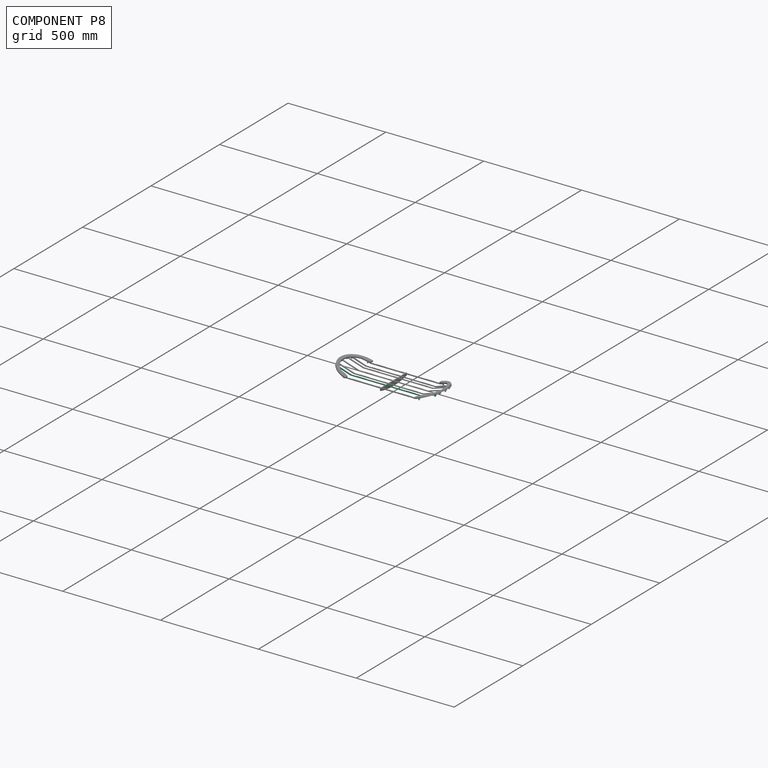
[diagram: component P8 — assembled]
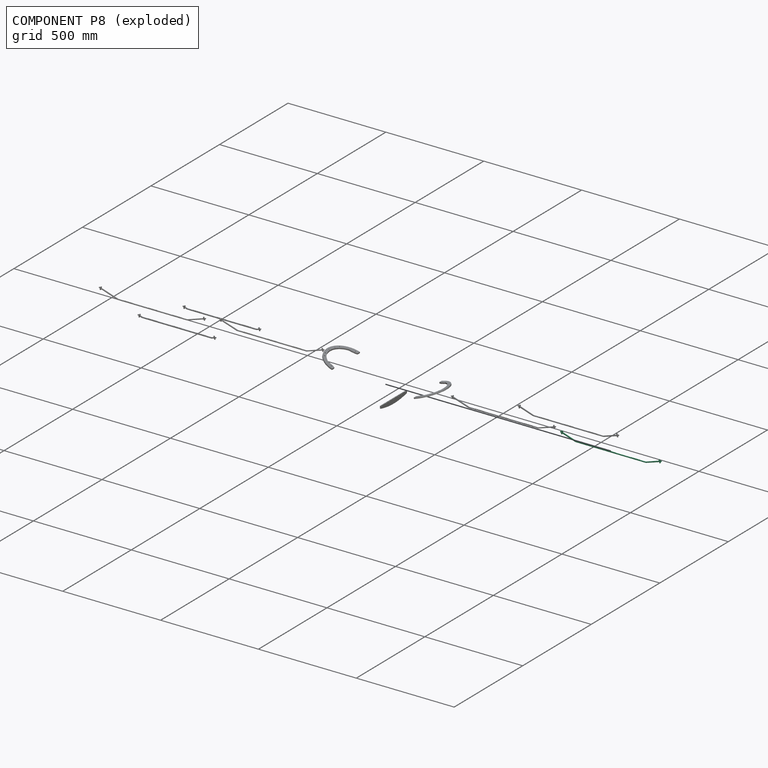
[diagram: component P8 — exploded]
COMPONENT P8 — same part as P5 (CADFS 00899114); its construction recipe is shown at P5.
Held by: FASTENED mate "Fastened 5" to P2.
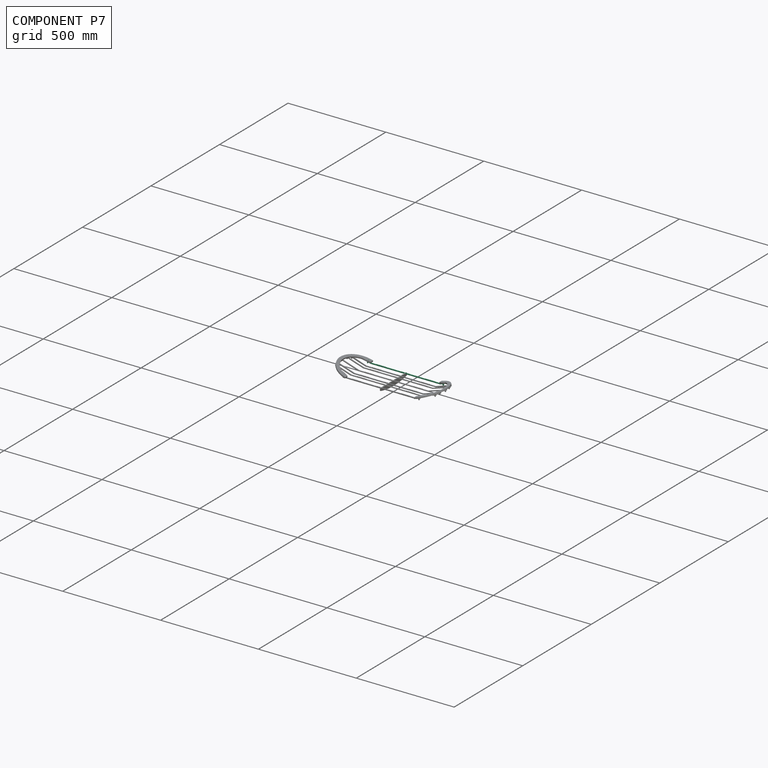
[diagram: component P7 — assembled]
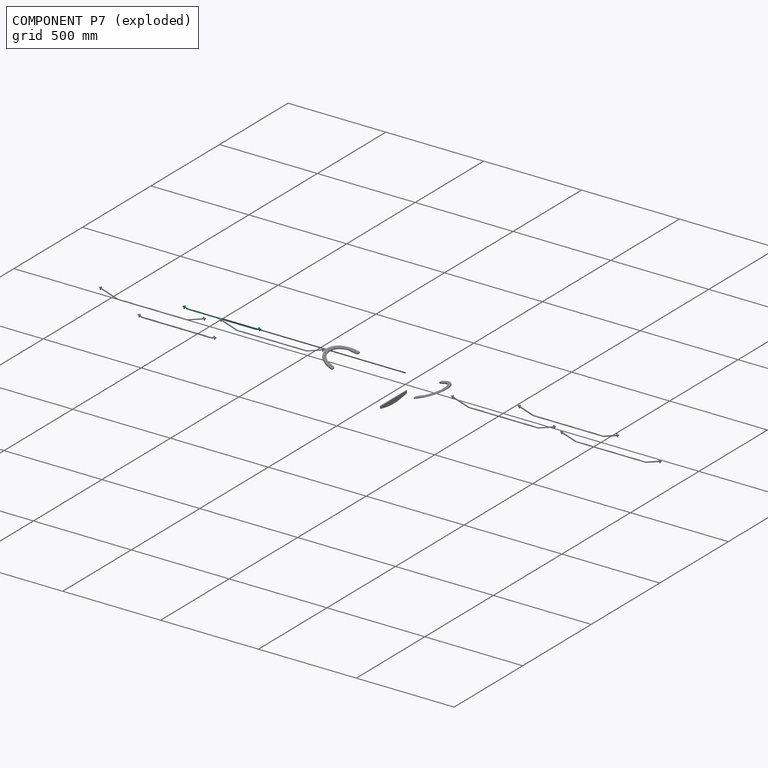
[diagram: component P7 — exploded]
COMPONENT P7 — same part as P3 (CADFS 00899113); its construction recipe is shown at P3.
Held by: FASTENED mate "Fastened 6" to P1; FASTENED mate "Fastened 10" to P6.
